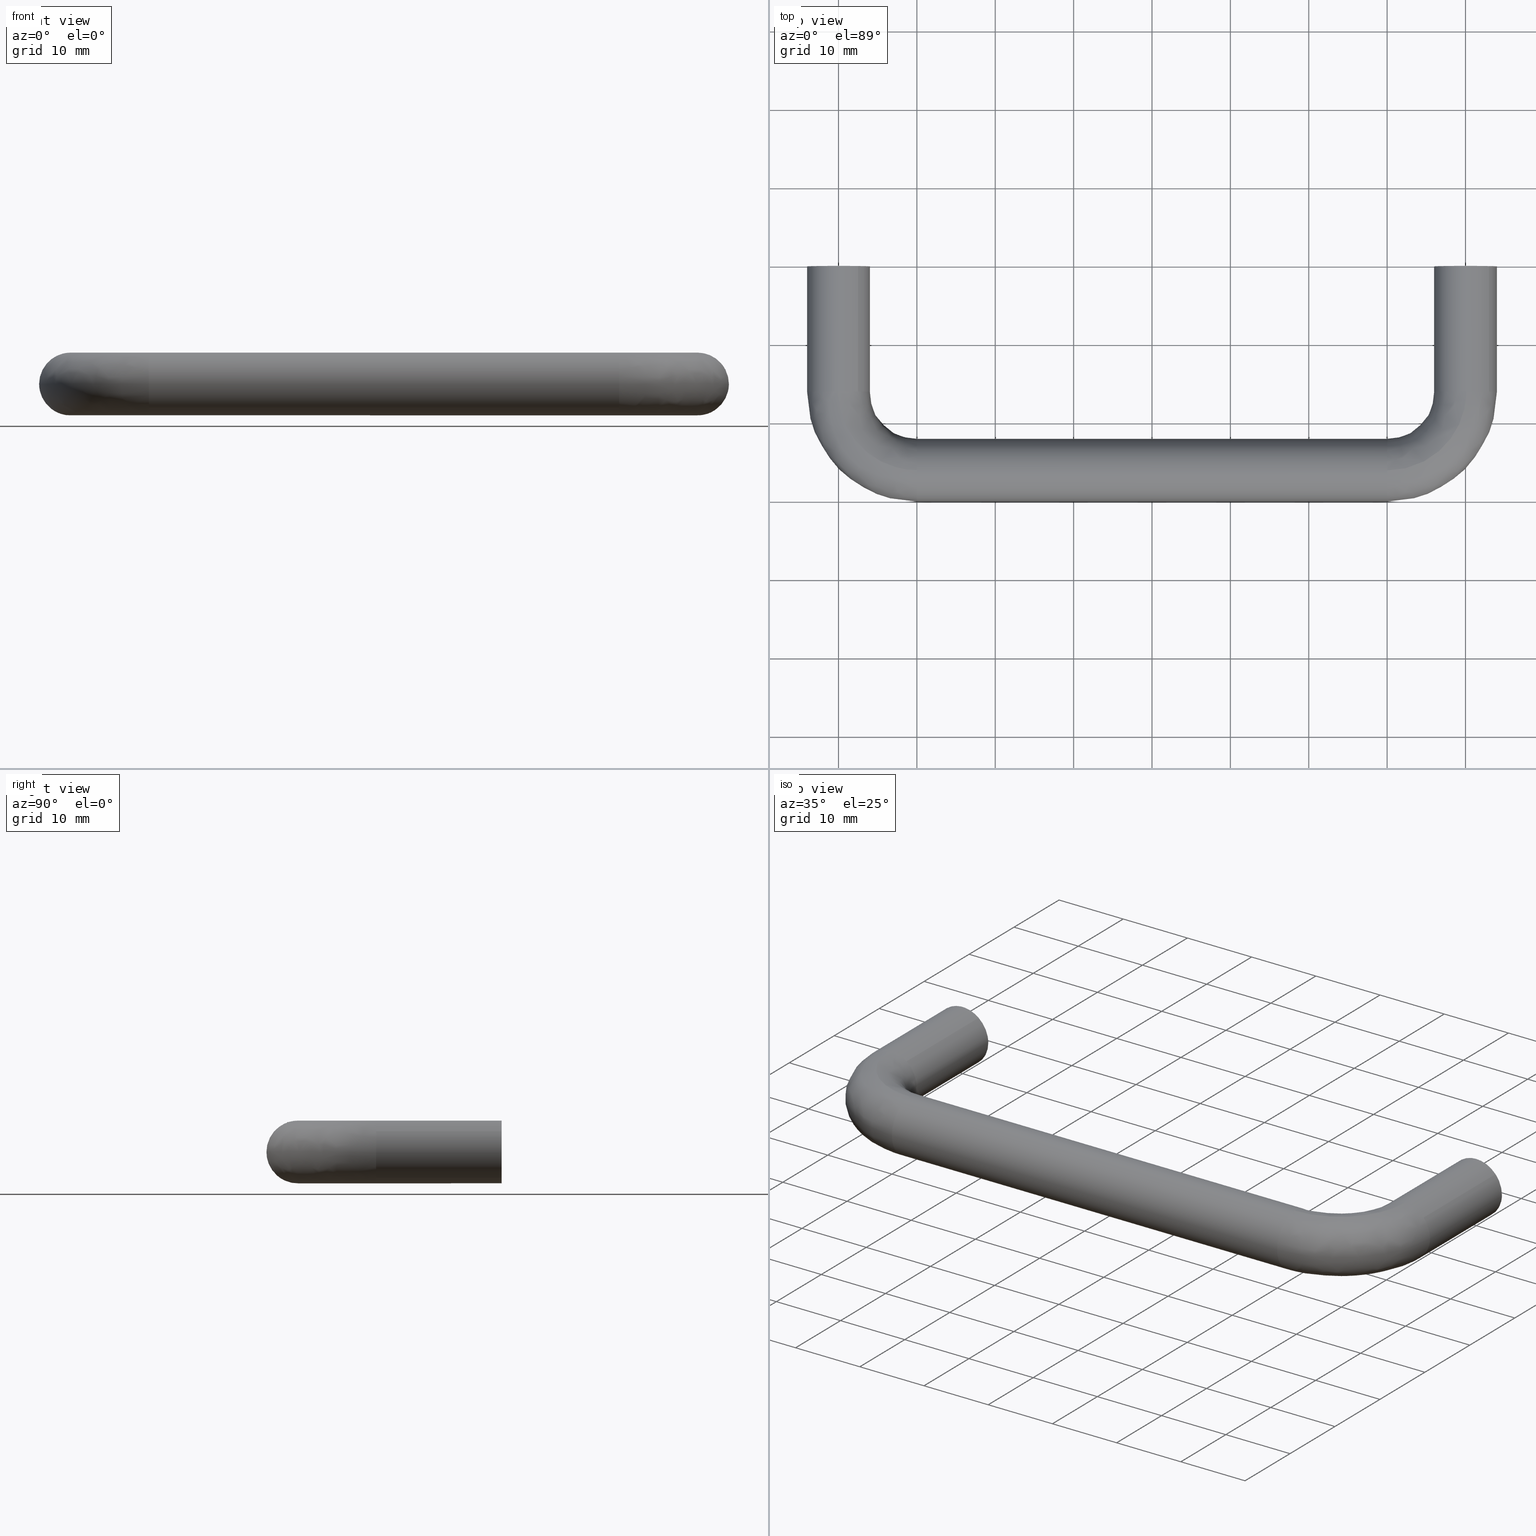
[diagram: canonical four-view strip — front | top / right | iso, engineering-drawing reading convention]
A machine part, canonical four-view strip (front | top / right | iso — engineering-drawing reading convention). The complete STEP part file that produces these views, byte-faithful:
ISO-10303-21;
HEADER;
/****************************************************************
 * Generated by software with PDE/Lib inside                    *
 * PDElib Version 4.4.1-0003, patched  Thursday August 19 11:58 *
 * International Technegroup Inc. (www.iti-oh.com)              *
 ****************************************************************/
FILE_DESCRIPTION((''),'2;1');
FILE_NAME('','2005-10-07T12:41:32',(''),(''),'','CADfix','');
FILE_SCHEMA(('AUTOMOTIVE_DESIGN'));
ENDSEC;
DATA;
#5=APPLICATION_CONTEXT('automotive design');
#6=APPLICATION_PROTOCOL_DEFINITION('Draft International Standard','automotive_design',1998,#5);
#7=PRODUCT_CONTEXT('None',#5,'mechanical');
#8=PRODUCT('pull','','None',(#7));
#9=PRODUCT_RELATED_PRODUCT_CATEGORY('part','description',(#8));
#10=PRODUCT_DEFINITION_FORMATION('None','None',#8);
#11=PRODUCT_DEFINITION_CONTEXT('part definition',#5,'design');
#12=PRODUCT_DEFINITION('None','None',#10,#11);
#18=(NAMED_UNIT(*)PLANE_ANGLE_UNIT()SI_UNIT($,.RADIAN.));
#19=DIMENSIONAL_EXPONENTS(0.0,0.0,0.0,0.0,0.0,0.0,0.0);
#20=PLANE_ANGLE_MEASURE_WITH_UNIT(PLANE_ANGLE_MEASURE(0.017453292500000),#18);
#24=(CONVERSION_BASED_UNIT('DEGREE',#20)NAMED_UNIT(#19)PLANE_ANGLE_UNIT());
#28=(NAMED_UNIT(*)SI_UNIT($,.STERADIAN.)SOLID_ANGLE_UNIT());
#32=(LENGTH_UNIT()NAMED_UNIT(*)SI_UNIT(.MILLI.,.METRE.));
#34=UNCERTAINTY_MEASURE_WITH_UNIT(LENGTH_MEASURE(0.001000000000000),#32,'DISTANCE_ACCURACY_VALUE','');
#36=(GEOMETRIC_REPRESENTATION_CONTEXT(3)GLOBAL_UNCERTAINTY_ASSIGNED_CONTEXT((#34))GLOBAL_UNIT_ASSIGNED_CONTEXT((#24,#28,#32))REPRESENTATION_CONTEXT('None','None'));
#37=AXIS2_PLACEMENT_3D('',#38,#39,#40);
#38=CARTESIAN_POINT('',(0.0,0.0,0.0));
#39=DIRECTION('',(0.0,0.0,1.0));
#40=DIRECTION('',(1.0,0.0,0.0));
#41=ADVANCED_BREP_SHAPE_REPRESENTATION('',(#37,#1345),#36);
#42=PRODUCT_DEFINITION_SHAPE('','',#12);
#43=SHAPE_DEFINITION_REPRESENTATION(#42,#41);
#44=CARTESIAN_POINT('',(-2.492293334332819,-12.300000000000001,0.196147739319614));
#45=CARTESIAN_POINT('',(-2.296145595013206,-12.300000000000002,2.688441073652433));
#46=CARTESIAN_POINT('',(0.196147739319614,-12.300000000000001,2.492293334332819));
#47=CARTESIAN_POINT('',(2.688441073652433,-12.300000000000002,2.296145595013206));
#48=CARTESIAN_POINT('',(2.492293334332819,-12.300000000000001,-0.196147739319614));
#49=CARTESIAN_POINT('',(-2.492293334332819,0.307500000000001,0.196147739319614));
#50=CARTESIAN_POINT('',(-2.296145595013206,0.307500000000001,2.688441073652433));
#51=CARTESIAN_POINT('',(0.196147739319614,0.307500000000001,2.492293334332819));
#52=CARTESIAN_POINT('',(2.688441073652433,0.307500000000001,2.296145595013206));
#53=CARTESIAN_POINT('',(2.492293334332819,0.307500000000001,-0.196147739319614));
#61=(BOUNDED_SURFACE()B_SPLINE_SURFACE(2,1,((#44,#49),(#45,#50),(#46,#51),(#47,#52),(#48,#53)),.UNSPECIFIED.,.F.,.F.,.U.)B_SPLINE_SURFACE_WITH_KNOTS((3,2,3),(2,2),(0.0,4.142135623730949,8.284271247461899),(0.0,12.607500000000011),.UNSPECIFIED.)GEOMETRIC_REPRESENTATION_ITEM()RATIONAL_B_SPLINE_SURFACE(((1.0,1.0),(0.707106781186548,0.707106781186548),(1.0,1.0),(0.707106781186548,0.707106781186548),(1.0,1.0)))REPRESENTATION_ITEM('')SURFACE());
#62=CARTESIAN_POINT('',(0.0,-12.0,2.500000000000000));
#63=VERTEX_POINT('',#62);
#64=CARTESIAN_POINT('',(-2.492293334313221,-12.0,0.196147739568638));
#65=VERTEX_POINT('',#64);
#66=CARTESIAN_POINT('',(0.0,-12.0,2.500000000000000));
#67=CARTESIAN_POINT('',(-2.310976228682274,-12.000000000000002,2.500000000000000));
#68=CARTESIAN_POINT('',(-2.492293334313221,-11.999999999999998,0.196147739568638));
#76=(BOUNDED_CURVE()B_SPLINE_CURVE(2,(#66,#67,#68),.UNSPECIFIED.,.F.,.U.)B_SPLINE_CURVE_WITH_KNOTS((3,3),(0.0,0.236331300598510),.UNSPECIFIED.)CURVE()GEOMETRIC_REPRESENTATION_ITEM()RATIONAL_B_SPLINE_CURVE((1.0,0.723120658645331,0.969723356100324))REPRESENTATION_ITEM(''));
#77=EDGE_CURVE('',#63,#65,#76,.T.);
#78=ORIENTED_EDGE('',*,*,#77,.T.);
#79=CARTESIAN_POINT('',(-2.492293334313221,3.330669E-016,0.196147739568638));
#80=VERTEX_POINT('',#79);
#81=CARTESIAN_POINT('',(-2.492293334313221,-12.0,0.196147739568638));
#82=CARTESIAN_POINT('',(-2.492293334313221,3.330669E-016,0.196147739568638));
#83=QUASI_UNIFORM_CURVE('',1,(#81,#82),.UNSPECIFIED.,.F.,.U.);
#84=EDGE_CURVE('',#65,#80,#83,.T.);
#85=ORIENTED_EDGE('',*,*,#84,.T.);
#86=CARTESIAN_POINT('',(0.0,0.0,2.500000000000000));
#87=VERTEX_POINT('',#86);
#88=CARTESIAN_POINT('',(0.0,0.0,2.500000000000000));
#89=CARTESIAN_POINT('',(-2.310976228682274,0.0,2.500000000000000));
#90=CARTESIAN_POINT('',(-2.492293334313221,3.330669E-016,0.196147739568638));
#98=(BOUNDED_CURVE()B_SPLINE_CURVE(2,(#88,#89,#90),.UNSPECIFIED.,.F.,.U.)B_SPLINE_CURVE_WITH_KNOTS((3,3),(0.0,0.236331300598510),.UNSPECIFIED.)CURVE()GEOMETRIC_REPRESENTATION_ITEM()RATIONAL_B_SPLINE_CURVE((1.0,0.723120658645331,0.969723356100324))REPRESENTATION_ITEM(''));
#99=EDGE_CURVE('',#87,#80,#98,.T.);
#100=ORIENTED_EDGE('',*,*,#99,.F.);
#101=CARTESIAN_POINT('',(2.492293334313221,3.330669E-016,-0.196147739568638));
#102=VERTEX_POINT('',#101);
#103=CARTESIAN_POINT('',(2.492293334313221,3.330669E-016,-0.196147739568638));
#104=CARTESIAN_POINT('',(2.500000000000000,0.0,-0.098225267769354));
#105=CARTESIAN_POINT('',(2.500000000000000,0.0,0.0));
#106=CARTESIAN_POINT('',(2.500000000000000,0.0,2.500000000000000));
#107=CARTESIAN_POINT('',(0.0,0.0,2.500000000000000));
#115=(BOUNDED_CURVE()B_SPLINE_CURVE(2,(#103,#104,#105,#106,#107),.UNSPECIFIED.,.F.,.U.)B_SPLINE_CURVE_WITH_KNOTS((3,2,3),(0.736331300598510,0.750000000000000,1.0),.UNSPECIFIED.)CURVE()GEOMETRIC_REPRESENTATION_ITEM()RATIONAL_B_SPLINE_CURVE((0.969723356100324,0.983986122541217,1.0,0.707106781186548,1.0))REPRESENTATION_ITEM(''));
#116=EDGE_CURVE('',#102,#87,#115,.T.);
#117=ORIENTED_EDGE('',*,*,#116,.F.);
#118=CARTESIAN_POINT('',(2.492293334313221,-12.0,-0.196147739568638));
#119=VERTEX_POINT('',#118);
#120=CARTESIAN_POINT('',(2.492293334313221,-12.0,-0.196147739568638));
#121=CARTESIAN_POINT('',(2.492293334313221,3.330669E-016,-0.196147739568638));
#122=QUASI_UNIFORM_CURVE('',1,(#120,#121),.UNSPECIFIED.,.F.,.U.);
#123=EDGE_CURVE('',#119,#102,#122,.T.);
#124=ORIENTED_EDGE('',*,*,#123,.F.);
#125=CARTESIAN_POINT('',(2.492293334313221,-11.999999999999998,-0.196147739568638));
#126=CARTESIAN_POINT('',(2.500000000000000,-12.000000000000002,-0.098225267769354));
#127=CARTESIAN_POINT('',(2.500000000000000,-12.0,0.0));
#128=CARTESIAN_POINT('',(2.500000000000000,-12.0,2.500000000000000));
#129=CARTESIAN_POINT('',(0.0,-12.0,2.500000000000000));
#137=(BOUNDED_CURVE()B_SPLINE_CURVE(2,(#125,#126,#127,#128,#129),.UNSPECIFIED.,.F.,.U.)B_SPLINE_CURVE_WITH_KNOTS((3,2,3),(0.736331300598510,0.750000000000000,1.0),.UNSPECIFIED.)CURVE()GEOMETRIC_REPRESENTATION_ITEM()RATIONAL_B_SPLINE_CURVE((0.969723356100324,0.983986122541217,1.0,0.707106781186548,1.0))REPRESENTATION_ITEM(''));
#138=EDGE_CURVE('',#119,#63,#137,.T.);
#139=ORIENTED_EDGE('',*,*,#138,.T.);
#140=EDGE_LOOP('',(#78,#85,#100,#117,#124,#139));
#141=FACE_OUTER_BOUND('',#140,.T.);
#142=ADVANCED_FACE('',(#141),#61,.F.);
#143=CARTESIAN_POINT('',(2.492293334332819,-12.300000000000001,-0.196147739319614));
#144=CARTESIAN_POINT('',(2.296145595013206,-12.300000000000002,-2.688441073652433));
#145=CARTESIAN_POINT('',(-0.196147739319614,-12.300000000000001,-2.492293334332819));
#146=CARTESIAN_POINT('',(-2.688441073652433,-12.300000000000002,-2.296145595013206));
#147=CARTESIAN_POINT('',(-2.492293334332819,-12.300000000000001,0.196147739319614));
#148=CARTESIAN_POINT('',(2.492293334332819,0.307500000000001,-0.196147739319614));
#149=CARTESIAN_POINT('',(2.296145595013206,0.307500000000001,-2.688441073652433));
#150=CARTESIAN_POINT('',(-0.196147739319614,0.307500000000001,-2.492293334332819));
#151=CARTESIAN_POINT('',(-2.688441073652433,0.307500000000001,-2.296145595013206));
#152=CARTESIAN_POINT('',(-2.492293334332819,0.307500000000001,0.196147739319614));
#160=(BOUNDED_SURFACE()B_SPLINE_SURFACE(2,1,((#143,#148),(#144,#149),(#145,#150),(#146,#151),(#147,#152)),.UNSPECIFIED.,.F.,.F.,.U.)B_SPLINE_SURFACE_WITH_KNOTS((3,2,3),(2,2),(0.0,4.142135623730949,8.284271247461899),(0.0,12.607500000000011),.UNSPECIFIED.)GEOMETRIC_REPRESENTATION_ITEM()RATIONAL_B_SPLINE_SURFACE(((1.0,1.0),(0.707106781186548,0.707106781186548),(1.0,1.0),(0.707106781186548,0.707106781186548),(1.0,1.0)))REPRESENTATION_ITEM('')SURFACE());
#161=CARTESIAN_POINT('',(0.0,-12.0,-2.500000000000000));
#162=VERTEX_POINT('',#161);
#163=CARTESIAN_POINT('',(-2.492293334313221,-12.0,0.196147739568638));
#164=CARTESIAN_POINT('',(-2.500000000000000,-12.000000000000004,0.098225267769355));
#165=CARTESIAN_POINT('',(-2.500000000000000,-12.0,0.0));
#166=CARTESIAN_POINT('',(-2.500000000000000,-12.0,-2.500000000000000));
#167=CARTESIAN_POINT('',(0.0,-12.0,-2.500000000000000));
#175=(BOUNDED_CURVE()B_SPLINE_CURVE(2,(#163,#164,#165,#166,#167),.UNSPECIFIED.,.F.,.U.)B_SPLINE_CURVE_WITH_KNOTS((3,2,3),(0.236331300598510,0.250000000000000,0.500000000000000),.UNSPECIFIED.)CURVE()GEOMETRIC_REPRESENTATION_ITEM()RATIONAL_B_SPLINE_CURVE((0.969723356100324,0.983986122541216,1.0,0.707106781186548,1.0))REPRESENTATION_ITEM(''));
#176=EDGE_CURVE('',#65,#162,#175,.T.);
#177=ORIENTED_EDGE('',*,*,#176,.T.);
#178=CARTESIAN_POINT('',(0.0,-12.0,-2.500000000000000));
#179=CARTESIAN_POINT('',(2.310976228682289,-12.0,-2.500000000000001));
#180=CARTESIAN_POINT('',(2.492293334313221,-12.0,-0.196147739568638));
#188=(BOUNDED_CURVE()B_SPLINE_CURVE(2,(#178,#179,#180),.UNSPECIFIED.,.F.,.U.)B_SPLINE_CURVE_WITH_KNOTS((3,3),(0.500000000000000,0.736331300598511),.UNSPECIFIED.)CURVE()GEOMETRIC_REPRESENTATION_ITEM()RATIONAL_B_SPLINE_CURVE((1.0,0.723120658645330,0.969723356100327))REPRESENTATION_ITEM(''));
#189=EDGE_CURVE('',#162,#119,#188,.T.);
#190=ORIENTED_EDGE('',*,*,#189,.T.);
#191=ORIENTED_EDGE('',*,*,#123,.T.);
#192=CARTESIAN_POINT('',(0.0,0.0,-2.500000000000000));
#193=VERTEX_POINT('',#192);
#194=CARTESIAN_POINT('',(0.0,0.0,-2.500000000000000));
#195=CARTESIAN_POINT('',(2.310976228682289,0.0,-2.500000000000001));
#196=CARTESIAN_POINT('',(2.492293334313221,3.330669E-016,-0.196147739568638));
#204=(BOUNDED_CURVE()B_SPLINE_CURVE(2,(#194,#195,#196),.UNSPECIFIED.,.F.,.U.)B_SPLINE_CURVE_WITH_KNOTS((3,3),(0.500000000000000,0.736331300598511),.UNSPECIFIED.)CURVE()GEOMETRIC_REPRESENTATION_ITEM()RATIONAL_B_SPLINE_CURVE((1.0,0.723120658645330,0.969723356100327))REPRESENTATION_ITEM(''));
#205=EDGE_CURVE('',#193,#102,#204,.T.);
#206=ORIENTED_EDGE('',*,*,#205,.F.);
#207=CARTESIAN_POINT('',(-2.492293334313221,3.330669E-016,0.196147739568638));
#208=CARTESIAN_POINT('',(-2.500000000000000,0.0,0.098225267769355));
#209=CARTESIAN_POINT('',(-2.500000000000000,0.0,0.0));
#210=CARTESIAN_POINT('',(-2.500000000000000,0.0,-2.500000000000000));
#211=CARTESIAN_POINT('',(0.0,0.0,-2.500000000000000));
#219=(BOUNDED_CURVE()B_SPLINE_CURVE(2,(#207,#208,#209,#210,#211),.UNSPECIFIED.,.F.,.U.)B_SPLINE_CURVE_WITH_KNOTS((3,2,3),(0.236331300598510,0.250000000000000,0.500000000000000),.UNSPECIFIED.)CURVE()GEOMETRIC_REPRESENTATION_ITEM()RATIONAL_B_SPLINE_CURVE((0.969723356100324,0.983986122541216,1.0,0.707106781186548,1.0))REPRESENTATION_ITEM(''));
#220=EDGE_CURVE('',#80,#193,#219,.T.);
#221=ORIENTED_EDGE('',*,*,#220,.F.);
#222=ORIENTED_EDGE('',*,*,#84,.F.);
#223=EDGE_LOOP('',(#177,#190,#191,#206,#221,#222));
#224=FACE_OUTER_BOUND('',#223,.T.);
#225=ADVANCED_FACE('',(#224),#160,.F.);
#226=CARTESIAN_POINT('',(77.507706665667186,-12.300000000000001,0.196147739319614));
#227=CARTESIAN_POINT('',(77.703854404986799,-12.300000000000002,2.688441073652433));
#228=CARTESIAN_POINT('',(80.196147739319613,-12.300000000000001,2.492293334332819));
#229=CARTESIAN_POINT('',(82.688441073652427,-12.300000000000002,2.296145595013206));
#230=CARTESIAN_POINT('',(82.492293334332814,-12.300000000000001,-0.196147739319614));
#231=CARTESIAN_POINT('',(77.507706665667186,0.307500000000001,0.196147739319614));
#232=CARTESIAN_POINT('',(77.703854404986799,0.307500000000001,2.688441073652433));
#233=CARTESIAN_POINT('',(80.196147739319613,0.307500000000001,2.492293334332819));
#234=CARTESIAN_POINT('',(82.688441073652427,0.307500000000001,2.296145595013206));
#235=CARTESIAN_POINT('',(82.492293334332814,0.307500000000001,-0.196147739319614));
#243=(BOUNDED_SURFACE()B_SPLINE_SURFACE(2,1,((#226,#231),(#227,#232),(#228,#233),(#229,#234),(#230,#235)),.UNSPECIFIED.,.F.,.F.,.U.)B_SPLINE_SURFACE_WITH_KNOTS((3,2,3),(2,2),(0.0,4.142135623730946,8.284271247461891),(0.0,12.607500000000011),.UNSPECIFIED.)GEOMETRIC_REPRESENTATION_ITEM()RATIONAL_B_SPLINE_SURFACE(((1.0,1.0),(0.707106781186548,0.707106781186548),(1.0,1.0),(0.707106781186548,0.707106781186548),(1.0,1.0)))REPRESENTATION_ITEM('')SURFACE());
#244=CARTESIAN_POINT('',(80.0,-12.0,2.500000000000000));
#245=VERTEX_POINT('',#244);
#246=CARTESIAN_POINT('',(77.507706665686783,-12.0,0.196147739568638));
#247=VERTEX_POINT('',#246);
#248=CARTESIAN_POINT('',(80.0,-12.0,2.500000000000000));
#249=CARTESIAN_POINT('',(77.689023771317721,-12.000000000000002,2.500000000000000));
#250=CARTESIAN_POINT('',(77.507706665686783,-11.999999999999998,0.196147739568638));
#258=(BOUNDED_CURVE()B_SPLINE_CURVE(2,(#248,#249,#250),.UNSPECIFIED.,.F.,.U.)B_SPLINE_CURVE_WITH_KNOTS((3,3),(0.0,0.236331300598510),.UNSPECIFIED.)CURVE()GEOMETRIC_REPRESENTATION_ITEM()RATIONAL_B_SPLINE_CURVE((1.0,0.723120658645331,0.969723356100324))REPRESENTATION_ITEM(''));
#259=EDGE_CURVE('',#245,#247,#258,.T.);
#260=ORIENTED_EDGE('',*,*,#259,.T.);
#261=CARTESIAN_POINT('',(77.507706665686783,3.330669E-016,0.196147739568638));
#262=VERTEX_POINT('',#261);
#263=CARTESIAN_POINT('',(77.507706665686783,-12.0,0.196147739568638));
#264=CARTESIAN_POINT('',(77.507706665686783,3.330669E-016,0.196147739568638));
#265=QUASI_UNIFORM_CURVE('',1,(#263,#264),.UNSPECIFIED.,.F.,.U.);
#266=EDGE_CURVE('',#247,#262,#265,.T.);
#267=ORIENTED_EDGE('',*,*,#266,.T.);
#268=CARTESIAN_POINT('',(80.0,0.0,2.500000000000000));
#269=VERTEX_POINT('',#268);
#270=CARTESIAN_POINT('',(80.0,0.0,2.500000000000000));
#271=CARTESIAN_POINT('',(77.689023771317721,0.0,2.500000000000000));
#272=CARTESIAN_POINT('',(77.507706665686783,3.330669E-016,0.196147739568638));
#280=(BOUNDED_CURVE()B_SPLINE_CURVE(2,(#270,#271,#272),.UNSPECIFIED.,.F.,.U.)B_SPLINE_CURVE_WITH_KNOTS((3,3),(0.0,0.236331300598510),.UNSPECIFIED.)CURVE()GEOMETRIC_REPRESENTATION_ITEM()RATIONAL_B_SPLINE_CURVE((1.0,0.723120658645331,0.969723356100324))REPRESENTATION_ITEM(''));
#281=EDGE_CURVE('',#269,#262,#280,.T.);
#282=ORIENTED_EDGE('',*,*,#281,.F.);
#283=CARTESIAN_POINT('',(82.492293334313217,3.330669E-016,-0.196147739568638));
#284=VERTEX_POINT('',#283);
#285=CARTESIAN_POINT('',(82.492293334313217,3.330669E-016,-0.196147739568638));
#286=CARTESIAN_POINT('',(82.499999999999986,0.0,-0.098225267769355));
#287=CARTESIAN_POINT('',(82.500000000000000,0.0,0.0));
#288=CARTESIAN_POINT('',(82.500000000000000,0.0,2.500000000000000));
#289=CARTESIAN_POINT('',(80.0,0.0,2.500000000000000));
#297=(BOUNDED_CURVE()B_SPLINE_CURVE(2,(#285,#286,#287,#288,#289),.UNSPECIFIED.,.F.,.U.)B_SPLINE_CURVE_WITH_KNOTS((3,2,3),(0.736331300598510,0.750000000000000,1.0),.UNSPECIFIED.)CURVE()GEOMETRIC_REPRESENTATION_ITEM()RATIONAL_B_SPLINE_CURVE((0.969723356100324,0.983986122541216,1.0,0.707106781186548,1.0))REPRESENTATION_ITEM(''));
#298=EDGE_CURVE('',#284,#269,#297,.T.);
#299=ORIENTED_EDGE('',*,*,#298,.F.);
#300=CARTESIAN_POINT('',(82.492293334313217,-12.0,-0.196147739568638));
#301=VERTEX_POINT('',#300);
#302=CARTESIAN_POINT('',(82.492293334313217,-12.0,-0.196147739568638));
#303=CARTESIAN_POINT('',(82.492293334313217,3.330669E-016,-0.196147739568638));
#304=QUASI_UNIFORM_CURVE('',1,(#302,#303),.UNSPECIFIED.,.F.,.U.);
#305=EDGE_CURVE('',#301,#284,#304,.T.);
#306=ORIENTED_EDGE('',*,*,#305,.F.);
#307=CARTESIAN_POINT('',(82.492293334313217,-12.000000000000002,-0.196147739568638));
#308=CARTESIAN_POINT('',(82.499999999999986,-12.000000000000004,-0.098225267769355));
#309=CARTESIAN_POINT('',(82.500000000000000,-12.0,0.0));
#310=CARTESIAN_POINT('',(82.500000000000000,-12.0,2.500000000000000));
#311=CARTESIAN_POINT('',(80.0,-12.0,2.500000000000000));
#319=(BOUNDED_CURVE()B_SPLINE_CURVE(2,(#307,#308,#309,#310,#311),.UNSPECIFIED.,.F.,.U.)B_SPLINE_CURVE_WITH_KNOTS((3,2,3),(0.736331300598510,0.750000000000000,1.0),.UNSPECIFIED.)CURVE()GEOMETRIC_REPRESENTATION_ITEM()RATIONAL_B_SPLINE_CURVE((0.969723356100324,0.983986122541216,1.0,0.707106781186548,1.0))REPRESENTATION_ITEM(''));
#320=EDGE_CURVE('',#301,#245,#319,.T.);
#321=ORIENTED_EDGE('',*,*,#320,.T.);
#322=EDGE_LOOP('',(#260,#267,#282,#299,#306,#321));
#323=FACE_OUTER_BOUND('',#322,.T.);
#324=ADVANCED_FACE('',(#323),#243,.F.);
#325=CARTESIAN_POINT('',(82.492293334332814,-12.300000000000001,-0.196147739319614));
#326=CARTESIAN_POINT('',(82.296145595013201,-12.300000000000002,-2.688441073652433));
#327=CARTESIAN_POINT('',(79.803852260680387,-12.300000000000001,-2.492293334332819));
#328=CARTESIAN_POINT('',(77.311558926347573,-12.300000000000002,-2.296145595013206));
#329=CARTESIAN_POINT('',(77.507706665667186,-12.300000000000001,0.196147739319614));
#330=CARTESIAN_POINT('',(82.492293334332814,0.307500000000001,-0.196147739319614));
#331=CARTESIAN_POINT('',(82.296145595013201,0.307500000000001,-2.688441073652433));
#332=CARTESIAN_POINT('',(79.803852260680387,0.307500000000001,-2.492293334332819));
#333=CARTESIAN_POINT('',(77.311558926347573,0.307500000000001,-2.296145595013206));
#334=CARTESIAN_POINT('',(77.507706665667186,0.307500000000001,0.196147739319614));
#342=(BOUNDED_SURFACE()B_SPLINE_SURFACE(2,1,((#325,#330),(#326,#331),(#327,#332),(#328,#333),(#329,#334)),.UNSPECIFIED.,.F.,.F.,.U.)B_SPLINE_SURFACE_WITH_KNOTS((3,2,3),(2,2),(0.0,4.142135623730946,8.284271247461891),(0.0,12.607500000000011),.UNSPECIFIED.)GEOMETRIC_REPRESENTATION_ITEM()RATIONAL_B_SPLINE_SURFACE(((1.0,1.0),(0.707106781186548,0.707106781186548),(1.0,1.0),(0.707106781186548,0.707106781186548),(1.0,1.0)))REPRESENTATION_ITEM('')SURFACE());
#343=CARTESIAN_POINT('',(80.0,-12.0,-2.500000000000000));
#344=VERTEX_POINT('',#343);
#345=CARTESIAN_POINT('',(77.507706665686783,-12.0,0.196147739568638));
#346=CARTESIAN_POINT('',(77.500000000000000,-12.000000000000004,0.098225267769355));
#347=CARTESIAN_POINT('',(77.500000000000000,-12.0,0.0));
#348=CARTESIAN_POINT('',(77.500000000000014,-12.0,-2.500000000000000));
#349=CARTESIAN_POINT('',(80.0,-12.0,-2.500000000000000));
#357=(BOUNDED_CURVE()B_SPLINE_CURVE(2,(#345,#346,#347,#348,#349),.UNSPECIFIED.,.F.,.U.)B_SPLINE_CURVE_WITH_KNOTS((3,2,3),(0.236331300598510,0.250000000000000,0.500000000000000),.UNSPECIFIED.)CURVE()GEOMETRIC_REPRESENTATION_ITEM()RATIONAL_B_SPLINE_CURVE((0.969723356100324,0.983986122541216,1.0,0.707106781186548,1.0))REPRESENTATION_ITEM(''));
#358=EDGE_CURVE('',#247,#344,#357,.T.);
#359=ORIENTED_EDGE('',*,*,#358,.T.);
#360=CARTESIAN_POINT('',(80.0,-12.0,-2.500000000000000));
#361=CARTESIAN_POINT('',(82.310976228682250,-12.0,-2.500000000000000));
#362=CARTESIAN_POINT('',(82.492293334313217,-12.000000000000007,-0.196147739568638));
#370=(BOUNDED_CURVE()B_SPLINE_CURVE(2,(#360,#361,#362),.UNSPECIFIED.,.F.,.U.)B_SPLINE_CURVE_WITH_KNOTS((3,3),(0.500000000000000,0.736331300598509),.UNSPECIFIED.)CURVE()GEOMETRIC_REPRESENTATION_ITEM()RATIONAL_B_SPLINE_CURVE((1.0,0.723120658645332,0.969723356100322))REPRESENTATION_ITEM(''));
#371=EDGE_CURVE('',#344,#301,#370,.T.);
#372=ORIENTED_EDGE('',*,*,#371,.T.);
#373=ORIENTED_EDGE('',*,*,#305,.T.);
#374=CARTESIAN_POINT('',(80.0,0.0,-2.500000000000000));
#375=VERTEX_POINT('',#374);
#376=CARTESIAN_POINT('',(80.0,0.0,-2.500000000000000));
#377=CARTESIAN_POINT('',(82.310976228682250,0.0,-2.500000000000000));
#378=CARTESIAN_POINT('',(82.492293334313217,3.330669E-016,-0.196147739568638));
#386=(BOUNDED_CURVE()B_SPLINE_CURVE(2,(#376,#377,#378),.UNSPECIFIED.,.F.,.U.)B_SPLINE_CURVE_WITH_KNOTS((3,3),(0.500000000000000,0.736331300598509),.UNSPECIFIED.)CURVE()GEOMETRIC_REPRESENTATION_ITEM()RATIONAL_B_SPLINE_CURVE((1.0,0.723120658645332,0.969723356100322))REPRESENTATION_ITEM(''));
#387=EDGE_CURVE('',#375,#284,#386,.T.);
#388=ORIENTED_EDGE('',*,*,#387,.F.);
#389=CARTESIAN_POINT('',(77.507706665686783,3.330669E-016,0.196147739568638));
#390=CARTESIAN_POINT('',(77.500000000000000,0.0,0.098225267769355));
#391=CARTESIAN_POINT('',(77.500000000000000,0.0,0.0));
#392=CARTESIAN_POINT('',(77.500000000000014,0.0,-2.500000000000000));
#393=CARTESIAN_POINT('',(80.0,0.0,-2.500000000000000));
#401=(BOUNDED_CURVE()B_SPLINE_CURVE(2,(#389,#390,#391,#392,#393),.UNSPECIFIED.,.F.,.U.)B_SPLINE_CURVE_WITH_KNOTS((3,2,3),(0.236331300598510,0.250000000000000,0.500000000000000),.UNSPECIFIED.)CURVE()GEOMETRIC_REPRESENTATION_ITEM()RATIONAL_B_SPLINE_CURVE((0.969723356100324,0.983986122541217,1.0,0.707106781186548,1.0))REPRESENTATION_ITEM(''));
#402=EDGE_CURVE('',#262,#375,#401,.T.);
#403=ORIENTED_EDGE('',*,*,#402,.F.);
#404=ORIENTED_EDGE('',*,*,#266,.F.);
#405=EDGE_LOOP('',(#359,#372,#373,#388,#403,#404));
#406=FACE_OUTER_BOUND('',#405,.T.);
#407=ADVANCED_FACE('',(#406),#342,.F.);
#408=CARTESIAN_POINT('',(82.286842443536074,-16.400000000610678,-3.281821390393139));
#409=CARTESIAN_POINT('',(79.364407731794643,-16.400000000610675,-5.318235607460819));
#410=CARTESIAN_POINT('',(77.004177116843991,-16.400000000610682,-2.650480192862948));
#411=CARTESIAN_POINT('',(74.353696923981047,-16.400000000610671,0.345342690293061));
#412=CARTESIAN_POINT('',(77.349519807137057,-16.400000000610682,2.995822883156009));
#413=CARTESIAN_POINT('',(80.345342690293066,-16.400000000610671,5.646303076018955));
#414=CARTESIAN_POINT('',(82.995822883156009,-16.400000000610682,2.650480192862948));
#415=CARTESIAN_POINT('',(82.286842443536074,0.410000000015277,-3.281821390393139));
#416=CARTESIAN_POINT('',(79.364407731794643,0.410000000015277,-5.318235607460819));
#417=CARTESIAN_POINT('',(77.004177116843991,0.410000000015277,-2.650480192862948));
#418=CARTESIAN_POINT('',(74.353696923981047,0.410000000015277,0.345342690293061));
#419=CARTESIAN_POINT('',(77.349519807137057,0.410000000015277,2.995822883156009));
#420=CARTESIAN_POINT('',(80.345342690293066,0.410000000015277,5.646303076018955));
#421=CARTESIAN_POINT('',(82.995822883156009,0.410000000015277,2.650480192862948));
#429=(BOUNDED_SURFACE()B_SPLINE_SURFACE(2,1,((#408,#415),(#409,#416),(#410,#417),(#411,#418),(#412,#419),(#413,#420),(#414,#421)),.UNSPECIFIED.,.F.,.F.,.U.)B_SPLINE_SURFACE_WITH_KNOTS((3,2,2,3),(2,2),(0.0,6.097223638131967,12.724640636101499,19.352057634071031),(0.0,16.810000000625958),.UNSPECIFIED.)GEOMETRIC_REPRESENTATION_ITEM()RATIONAL_B_SPLINE_SURFACE(((0.956886118190660,0.956886118190660),(0.730538238691624,0.730538238691624),(1.0,1.0),(0.707106781186548,0.707106781186548),(1.0,1.0),(0.707106781186548,0.707106781186548),(1.0,1.0)))REPRESENTATION_ITEM('')SURFACE());
#430=CARTESIAN_POINT('',(79.899479618137065,-16.000000000145992,-3.998736757130948));
#431=VERTEX_POINT('',#430);
#432=CARTESIAN_POINT('',(82.286842443537779,-16.0,-3.281821390391957));
#433=VERTEX_POINT('',#432);
#434=CARTESIAN_POINT('',(79.899479618137065,-16.000000000145995,-3.998736757130948));
#435=CARTESIAN_POINT('',(79.949731871416873,-16.000000000000004,-4.000000000000000));
#436=CARTESIAN_POINT('',(80.0,-16.0,-4.0));
#437=CARTESIAN_POINT('',(81.256192549054944,-15.999999999999996,-4.0));
#438=CARTESIAN_POINT('',(82.286842443537779,-16.000000000000004,-3.281821390391957));
#446=(BOUNDED_CURVE()B_SPLINE_CURVE(2,(#434,#435,#436,#437,#438),.UNSPECIFIED.,.F.,.U.)B_SPLINE_CURVE_WITH_KNOTS((3,2,3),(0.245579891761969,0.250000000000000,0.348251884123377),.UNSPECIFIED.)CURVE()GEOMETRIC_REPRESENTATION_ITEM()RATIONAL_B_SPLINE_CURVE((0.989826157663860,0.994821521082637,1.0,0.884890757618471,0.860259114788940))REPRESENTATION_ITEM(''));
#447=EDGE_CURVE('',#431,#433,#446,.T.);
#448=ORIENTED_EDGE('',*,*,#447,.F.);
#449=CARTESIAN_POINT('',(76.0,-16.0,0.0));
#450=VERTEX_POINT('',#449);
#451=CARTESIAN_POINT('',(76.0,-16.0,0.0));
#452=CARTESIAN_POINT('',(76.0,-15.999999999999998,-3.900711504547809));
#453=CARTESIAN_POINT('',(79.899479618137065,-16.000000000145992,-3.998736757130948));
#461=(BOUNDED_CURVE()B_SPLINE_CURVE(2,(#451,#452,#453),.UNSPECIFIED.,.F.,.U.)B_SPLINE_CURVE_WITH_KNOTS((3,3),(0.0,0.245579891761969),.UNSPECIFIED.)CURVE()GEOMETRIC_REPRESENTATION_ITEM()RATIONAL_B_SPLINE_CURVE((1.0,0.712285260103910,0.989826157663860))REPRESENTATION_ITEM(''));
#462=EDGE_CURVE('',#450,#431,#461,.T.);
#463=ORIENTED_EDGE('',*,*,#462,.F.);
#464=CARTESIAN_POINT('',(80.100520384521587,-16.000000000595779,3.998736757064114));
#465=VERTEX_POINT('',#464);
#466=CARTESIAN_POINT('',(80.100520384521587,-16.000000000595783,3.998736757064113));
#467=CARTESIAN_POINT('',(80.050268131243058,-16.000000000000004,4.0));
#468=CARTESIAN_POINT('',(80.0,-16.0,4.0));
#469=CARTESIAN_POINT('',(76.0,-15.999999999999998,4.000000000000000));
#470=CARTESIAN_POINT('',(76.0,-16.0,0.0));
#478=(BOUNDED_CURVE()B_SPLINE_CURVE(2,(#466,#467,#468,#469,#470),.UNSPECIFIED.,.F.,.U.)B_SPLINE_CURVE_WITH_KNOTS((3,2,3),(0.745579891529291,0.750000000000000,1.0),.UNSPECIFIED.)CURVE()GEOMETRIC_REPRESENTATION_ITEM()RATIONAL_B_SPLINE_CURVE((0.989826157137938,0.994821520810037,1.0,0.707106781186548,1.0))REPRESENTATION_ITEM(''));
#479=EDGE_CURVE('',#465,#450,#478,.T.);
#480=ORIENTED_EDGE('',*,*,#479,.F.);
#481=CARTESIAN_POINT('',(82.995824228330804,-16.000000000153481,2.650478672026813));
#482=VERTEX_POINT('',#481);
#483=CARTESIAN_POINT('',(82.995824228330804,-16.000000000153474,2.650478672026814));
#484=CARTESIAN_POINT('',(81.841711962091964,-16.000000000329749,3.954966621062498));
#485=CARTESIAN_POINT('',(80.100520384521587,-16.000000000595783,3.998736757064113));
#493=(BOUNDED_CURVE()B_SPLINE_CURVE(2,(#483,#484,#485),.UNSPECIFIED.,.F.,.U.)B_SPLINE_CURVE_WITH_KNOTS((3,3),(0.615779811379745,0.745579891529291),.UNSPECIFIED.)CURVE()GEOMETRIC_REPRESENTATION_ITEM()RATIONAL_B_SPLINE_CURVE((0.854350171477797,0.843133240140239,0.989826157137938))REPRESENTATION_ITEM(''));
#494=EDGE_CURVE('',#482,#465,#493,.T.);
#495=ORIENTED_EDGE('',*,*,#494,.F.);
#496=CARTESIAN_POINT('',(82.995824313989800,9.978129E-015,2.650478575597776));
#497=VERTEX_POINT('',#496);
#498=CARTESIAN_POINT('',(82.995824228330804,-16.000000000153481,2.650478672026813));
#499=CARTESIAN_POINT('',(82.995824313989800,9.978129E-015,2.650478575597776));
#500=QUASI_UNIFORM_CURVE('',1,(#498,#499),.UNSPECIFIED.,.F.,.U.);
#501=EDGE_CURVE('',#482,#497,#500,.T.);
#502=ORIENTED_EDGE('',*,*,#501,.T.);
#503=CARTESIAN_POINT('',(76.0,1.040834E-014,0.0));
#504=VERTEX_POINT('',#503);
#505=CARTESIAN_POINT('',(82.995824313989786,9.978129E-015,2.650478575597777));
#506=CARTESIAN_POINT('',(81.801869913532229,1.040834E-014,4.0));
#507=CARTESIAN_POINT('',(80.0,1.040834E-014,4.0));
#508=CARTESIAN_POINT('',(76.0,1.040834E-014,4.000000000000000));
#509=CARTESIAN_POINT('',(76.0,1.040834E-014,0.0));
#517=(BOUNDED_CURVE()B_SPLINE_CURVE(2,(#505,#506,#507,#508,#509),.UNSPECIFIED.,.F.,.U.)B_SPLINE_CURVE_WITH_KNOTS((3,2,3),(0.615779806528000,0.750000000000000,1.0),.UNSPECIFIED.)CURVE()GEOMETRIC_REPRESENTATION_ITEM()RATIONAL_B_SPLINE_CURVE((0.854350172316343,0.842751262016887,1.0,0.707106781186548,1.0))REPRESENTATION_ITEM(''));
#518=EDGE_CURVE('',#497,#504,#517,.T.);
#519=ORIENTED_EDGE('',*,*,#518,.T.);
#520=CARTESIAN_POINT('',(82.286842456896807,1.080236E-014,-3.281821381083093));
#521=VERTEX_POINT('',#520);
#522=CARTESIAN_POINT('',(76.0,1.040834E-014,0.0));
#523=CARTESIAN_POINT('',(76.0,1.040834E-014,-4.000000000000000));
#524=CARTESIAN_POINT('',(80.0,1.040834E-014,-4.0));
#525=CARTESIAN_POINT('',(81.256192566943326,1.040834E-014,-4.0));
#526=CARTESIAN_POINT('',(82.286842456896807,1.080236E-014,-3.281821381083093));
#534=(BOUNDED_CURVE()B_SPLINE_CURVE(2,(#522,#523,#524,#525,#526),.UNSPECIFIED.,.F.,.U.)B_SPLINE_CURVE_WITH_KNOTS((3,2,3),(0.0,0.250000000000000,0.348251885361446),.UNSPECIFIED.)CURVE()GEOMETRIC_REPRESENTATION_ITEM()RATIONAL_B_SPLINE_CURVE((1.0,0.707106781186548,1.0,0.884890756167983,0.860259114168175))REPRESENTATION_ITEM(''));
#535=EDGE_CURVE('',#504,#521,#534,.T.);
#536=ORIENTED_EDGE('',*,*,#535,.T.);
#537=CARTESIAN_POINT('',(82.286842443537779,-16.0,-3.281821390391957));
#538=CARTESIAN_POINT('',(82.286842456896807,1.080236E-014,-3.281821381083093));
#539=QUASI_UNIFORM_CURVE('',1,(#537,#538),.UNSPECIFIED.,.F.,.U.);
#540=EDGE_CURVE('',#433,#521,#539,.T.);
#541=ORIENTED_EDGE('',*,*,#540,.F.);
#542=EDGE_LOOP('',(#448,#463,#480,#495,#502,#519,#536,#541));
#543=FACE_OUTER_BOUND('',#542,.T.);
#544=ADVANCED_FACE('',(#543),#429,.T.);
#545=CARTESIAN_POINT('',(82.995822883156009,-16.400000000610682,2.650480192862948));
#546=CARTESIAN_POINT('',(85.646303076018953,-16.400000000610671,-0.345342690293061));
#547=CARTESIAN_POINT('',(82.650480192862943,-16.400000000610682,-2.995822883156009));
#548=CARTESIAN_POINT('',(82.476944668525746,-16.400000000610678,-3.149354145835096));
#549=CARTESIAN_POINT('',(82.286842443536074,-16.400000000610678,-3.281821390393139));
#550=CARTESIAN_POINT('',(82.995822883156009,0.410000000015277,2.650480192862948));
#551=CARTESIAN_POINT('',(85.646303076018953,0.410000000015277,-0.345342690293061));
#552=CARTESIAN_POINT('',(82.650480192862943,0.410000000015277,-2.995822883156009));
#553=CARTESIAN_POINT('',(82.476944668525746,0.410000000015277,-3.149354145835096));
#554=CARTESIAN_POINT('',(82.286842443536074,0.410000000015277,-3.281821390393139));
#562=(BOUNDED_SURFACE()B_SPLINE_SURFACE(2,1,((#545,#550),(#546,#551),(#547,#552),(#548,#553),(#549,#554)),.UNSPECIFIED.,.F.,.F.,.U.)B_SPLINE_SURFACE_WITH_KNOTS((3,2,3),(2,2),(0.0,6.627416997969519,7.157610357807082),(0.0,16.810000000625958),.UNSPECIFIED.)GEOMETRIC_REPRESENTATION_ITEM()RATIONAL_B_SPLINE_SURFACE(((1.0,1.0),(0.707106781186548,0.707106781186548),(1.0,1.0),(0.976568542494924,0.976568542494924),(0.956886118190660,0.956886118190660)))REPRESENTATION_ITEM('')SURFACE());
#563=CARTESIAN_POINT('',(84.0,-16.0,0.0));
#564=VERTEX_POINT('',#563);
#565=CARTESIAN_POINT('',(82.286842443537779,-16.000000000000004,-3.281821390391957));
#566=CARTESIAN_POINT('',(83.999999999999986,-15.999999999999996,-2.088057030131726));
#567=CARTESIAN_POINT('',(84.0,-16.0,0.0));
#575=(BOUNDED_CURVE()B_SPLINE_CURVE(2,(#565,#566,#567),.UNSPECIFIED.,.F.,.U.)B_SPLINE_CURVE_WITH_KNOTS((3,3),(0.348251884123377,0.500000000000000),.UNSPECIFIED.)CURVE()GEOMETRIC_REPRESENTATION_ITEM()RATIONAL_B_SPLINE_CURVE((0.860259114788940,0.822216023568076,1.0))REPRESENTATION_ITEM(''));
#576=EDGE_CURVE('',#433,#564,#575,.T.);
#577=ORIENTED_EDGE('',*,*,#576,.F.);
#578=ORIENTED_EDGE('',*,*,#540,.T.);
#579=CARTESIAN_POINT('',(84.0,1.040834E-014,0.0));
#580=VERTEX_POINT('',#579);
#581=CARTESIAN_POINT('',(82.286842456896807,1.080236E-014,-3.281821381083093));
#582=CARTESIAN_POINT('',(84.000000000000014,1.040834E-014,-2.088057009412296));
#583=CARTESIAN_POINT('',(84.0,1.040834E-014,0.0));
#591=(BOUNDED_CURVE()B_SPLINE_CURVE(2,(#581,#582,#583),.UNSPECIFIED.,.F.,.U.)B_SPLINE_CURVE_WITH_KNOTS((3,3),(0.348251885361446,0.500000000000000),.UNSPECIFIED.)CURVE()GEOMETRIC_REPRESENTATION_ITEM()RATIONAL_B_SPLINE_CURVE((0.860259114168175,0.822216025018564,1.0))REPRESENTATION_ITEM(''));
#592=EDGE_CURVE('',#521,#580,#591,.T.);
#593=ORIENTED_EDGE('',*,*,#592,.T.);
#594=CARTESIAN_POINT('',(84.0,1.040834E-014,0.0));
#595=CARTESIAN_POINT('',(84.000000000000014,1.040834E-014,1.515463200125099));
#596=CARTESIAN_POINT('',(82.995824313989786,9.978129E-015,2.650478575597777));
#604=(BOUNDED_CURVE()B_SPLINE_CURVE(2,(#594,#595,#596),.UNSPECIFIED.,.F.,.U.)B_SPLINE_CURVE_WITH_KNOTS((3,3),(0.500000000000000,0.615779806528000),.UNSPECIFIED.)CURVE()GEOMETRIC_REPRESENTATION_ITEM()RATIONAL_B_SPLINE_CURVE((1.0,0.864355519169661,0.854350172316343))REPRESENTATION_ITEM(''));
#605=EDGE_CURVE('',#580,#497,#604,.T.);
#606=ORIENTED_EDGE('',*,*,#605,.T.);
#607=ORIENTED_EDGE('',*,*,#501,.F.);
#608=CARTESIAN_POINT('',(84.0,-16.0,0.0));
#609=CARTESIAN_POINT('',(84.0,-16.000000000000004,1.515463273596464));
#610=CARTESIAN_POINT('',(82.995824228330804,-16.000000000153474,2.650478672026814));
#618=(BOUNDED_CURVE()B_SPLINE_CURVE(2,(#608,#609,#610),.UNSPECIFIED.,.F.,.U.)B_SPLINE_CURVE_WITH_KNOTS((3,3),(0.500000000000000,0.615779811379745),.UNSPECIFIED.)CURVE()GEOMETRIC_REPRESENTATION_ITEM()RATIONAL_B_SPLINE_CURVE((1.0,0.864355513485489,0.854350171477797))REPRESENTATION_ITEM(''));
#619=EDGE_CURVE('',#564,#482,#618,.T.);
#620=ORIENTED_EDGE('',*,*,#619,.F.);
#621=EDGE_LOOP('',(#577,#578,#593,#606,#607,#620));
#622=FACE_OUTER_BOUND('',#621,.T.);
#623=ADVANCED_FACE('',(#622),#562,.T.);
#624=CARTESIAN_POINT('',(8.499999999361522,-23.512770200789916,-3.132680629416496));
#625=CARTESIAN_POINT('',(8.499999999361522,-23.237270391724497,-2.913944212959058));
#626=CARTESIAN_POINT('',(8.499999999361522,-23.004177116843991,-2.650480192862946));
#627=CARTESIAN_POINT('',(8.499999999361522,-20.353696923981044,0.345342690293064));
#628=CARTESIAN_POINT('',(8.499999999361522,-23.349519807137050,2.995822883156010));
#629=CARTESIAN_POINT('',(8.499999999361522,-26.345342690293069,5.646303076018955));
#630=CARTESIAN_POINT('',(8.499999999361522,-28.995822883156009,2.650480192862946));
#631=CARTESIAN_POINT('',(8.499999999361522,-31.646303076018953,-0.345342690293064));
#632=CARTESIAN_POINT('',(8.499999999361522,-28.650480192862950,-2.995822883156010));
#633=CARTESIAN_POINT('',(71.537500000196090,-23.512770200789905,-3.132680629416496));
#634=CARTESIAN_POINT('',(71.537500000196090,-23.237270391724483,-2.913944212959058));
#635=CARTESIAN_POINT('',(71.537500000196090,-23.004177116843980,-2.650480192862946));
#636=CARTESIAN_POINT('',(71.537500000196104,-20.353696923981044,0.345342690293064));
#637=CARTESIAN_POINT('',(71.537500000196090,-23.349519807137050,2.995822883156010));
#638=CARTESIAN_POINT('',(71.537500000196104,-26.345342690293052,5.646303076018955));
#639=CARTESIAN_POINT('',(71.537500000196090,-28.995822883155999,2.650480192862946));
#640=CARTESIAN_POINT('',(71.537500000196104,-31.646303076018953,-0.345342690293064));
#641=CARTESIAN_POINT('',(71.537500000196090,-28.650480192862940,-2.995822883156010));
#649=(BOUNDED_SURFACE()B_SPLINE_SURFACE(2,1,((#624,#633),(#625,#634),(#626,#635),(#627,#636),(#628,#637),(#629,#638),(#630,#639),(#631,#640),(#632,#641)),.UNSPECIFIED.,.F.,.F.,.U.)B_SPLINE_SURFACE_WITH_KNOTS((3,2,2,2,3),(2,2),(0.0,0.795290039756342,7.422707037725860,14.050124035695379,20.677541033664902),(0.0,63.037500000834576),.UNSPECIFIED.)GEOMETRIC_REPRESENTATION_ITEM()RATIONAL_B_SPLINE_SURFACE(((0.938140952186599,0.938140952186599),(0.964852813742386,0.964852813742386),(1.0,1.0),(0.707106781186548,0.707106781186548),(1.0,1.0),(0.707106781186548,0.707106781186548),(1.0,1.0),(0.707106781186548,0.707106781186548),(1.0,1.0)))REPRESENTATION_ITEM('')SURFACE());
#650=CARTESIAN_POINT('',(70.0,-22.0,0.0));
#651=VERTEX_POINT('',#650);
#652=CARTESIAN_POINT('',(70.000000000068184,-23.512772870504168,-3.132682749045181));
#653=VERTEX_POINT('',#652);
#654=CARTESIAN_POINT('',(70.0,-22.0,0.0));
#655=CARTESIAN_POINT('',(70.0,-22.000000000000007,-1.931600473656280));
#656=CARTESIAN_POINT('',(70.000000000068184,-23.512772870504158,-3.132682749045181));
#664=(BOUNDED_CURVE()B_SPLINE_CURVE(2,(#654,#655,#656),.UNSPECIFIED.,.F.,.U.)B_SPLINE_CURVE_WITH_KNOTS((3,3),(0.0,0.142272992642191),.UNSPECIFIED.)CURVE()GEOMETRIC_REPRESENTATION_ITEM()RATIONAL_B_SPLINE_CURVE((1.0,0.833316820939224,0.856349759543174))REPRESENTATION_ITEM(''));
#665=EDGE_CURVE('',#651,#653,#664,.T.);
#666=ORIENTED_EDGE('',*,*,#665,.T.);
#667=CARTESIAN_POINT('',(9.999999999955744,-23.512770200805161,-3.132680629395788));
#668=VERTEX_POINT('',#667);
#669=CARTESIAN_POINT('',(9.999999999955744,-23.512770200805161,-3.132680629395788));
#670=CARTESIAN_POINT('',(70.000000000068184,-23.512772870504168,-3.132682749045181));
#671=QUASI_UNIFORM_CURVE('',1,(#669,#670),.UNSPECIFIED.,.F.,.U.);
#672=EDGE_CURVE('',#668,#653,#671,.T.);
#673=ORIENTED_EDGE('',*,*,#672,.F.);
#674=CARTESIAN_POINT('',(10.0,-22.0,0.0));
#675=VERTEX_POINT('',#674);
#676=CARTESIAN_POINT('',(10.0,-22.0,0.0));
#677=CARTESIAN_POINT('',(10.0,-21.999999999999996,-1.931598371755627));
#678=CARTESIAN_POINT('',(9.999999999955744,-23.512770200805161,-3.132680629395788));
#686=(BOUNDED_CURVE()B_SPLINE_CURVE(2,(#676,#677,#678),.UNSPECIFIED.,.F.,.U.)B_SPLINE_CURVE_WITH_KNOTS((3,3),(0.0,0.142272863630943),.UNSPECIFIED.)CURVE()GEOMETRIC_REPRESENTATION_ITEM()RATIONAL_B_SPLINE_CURVE((1.0,0.833316972085303,0.856349717771409))REPRESENTATION_ITEM(''));
#687=EDGE_CURVE('',#675,#668,#686,.T.);
#688=ORIENTED_EDGE('',*,*,#687,.F.);
#689=CARTESIAN_POINT('',(9.999999999381382,-26.050264162204599,3.999684176781694));
#690=VERTEX_POINT('',#689);
#691=CARTESIAN_POINT('',(9.999999999381382,-26.050264162204602,3.999684176781694));
#692=CARTESIAN_POINT('',(10.0,-26.025133074639072,4.000000000000000));
#693=CARTESIAN_POINT('',(10.0,-26.0,4.0));
#694=CARTESIAN_POINT('',(10.000000000000002,-22.000000000000007,4.000000000000000));
#695=CARTESIAN_POINT('',(10.0,-22.0,0.0));
#703=(BOUNDED_CURVE()B_SPLINE_CURVE(2,(#691,#692,#693,#694,#695),.UNSPECIFIED.,.F.,.U.)B_SPLINE_CURVE_WITH_KNOTS((3,2,3),(0.747784295686822,0.750000000000000,1.0),.UNSPECIFIED.)CURVE()GEOMETRIC_REPRESENTATION_ITEM()RATIONAL_B_SPLINE_CURVE((0.994854295103350,0.997404140927098,1.0,0.707106781186548,1.0))REPRESENTATION_ITEM(''));
#704=EDGE_CURVE('',#690,#675,#703,.T.);
#705=ORIENTED_EDGE('',*,*,#704,.F.);
#706=CARTESIAN_POINT('',(10.0,-30.0,0.0));
#707=VERTEX_POINT('',#706);
#708=CARTESIAN_POINT('',(10.0,-30.0,0.0));
#709=CARTESIAN_POINT('',(10.0,-30.0,3.950047714352737));
#710=CARTESIAN_POINT('',(9.999999999381382,-26.050264162204602,3.999684176781694));
#718=(BOUNDED_CURVE()B_SPLINE_CURVE(2,(#708,#709,#710),.UNSPECIFIED.,.F.,.U.)B_SPLINE_CURVE_WITH_KNOTS((3,3),(0.500000000000000,0.747784295686821),.UNSPECIFIED.)CURVE()GEOMETRIC_REPRESENTATION_ITEM()RATIONAL_B_SPLINE_CURVE((1.0,0.709702640259450,0.994854295103348))REPRESENTATION_ITEM(''));
#719=EDGE_CURVE('',#707,#690,#718,.T.);
#720=ORIENTED_EDGE('',*,*,#719,.F.);
#721=CARTESIAN_POINT('',(10.0,-28.650478575597770,-2.995824313989811));
#722=VERTEX_POINT('',#721);
#723=CARTESIAN_POINT('',(10.0,-28.650478575597770,-2.995824313989811));
#724=CARTESIAN_POINT('',(10.000000000000002,-29.999999999999996,-1.801869913532229));
#725=CARTESIAN_POINT('',(10.0,-30.0,0.0));
#733=(BOUNDED_CURVE()B_SPLINE_CURVE(2,(#723,#724,#725),.UNSPECIFIED.,.F.,.U.)B_SPLINE_CURVE_WITH_KNOTS((3,3),(0.365779806528000,0.500000000000000),.UNSPECIFIED.)CURVE()GEOMETRIC_REPRESENTATION_ITEM()RATIONAL_B_SPLINE_CURVE((0.854350172316343,0.842751262016886,1.0))REPRESENTATION_ITEM(''));
#734=EDGE_CURVE('',#722,#707,#733,.T.);
#735=ORIENTED_EDGE('',*,*,#734,.F.);
#736=CARTESIAN_POINT('',(70.000000000000014,-28.650478555391039,-2.995824331867176));
#737=VERTEX_POINT('',#736);
#738=CARTESIAN_POINT('',(10.0,-28.650478575597770,-2.995824313989811));
#739=CARTESIAN_POINT('',(70.000000000000014,-28.650478555391039,-2.995824331867176));
#740=QUASI_UNIFORM_CURVE('',1,(#738,#739),.UNSPECIFIED.,.F.,.U.);
#741=EDGE_CURVE('',#722,#737,#740,.T.);
#742=ORIENTED_EDGE('',*,*,#741,.T.);
#743=CARTESIAN_POINT('',(70.0,-30.0,0.0));
#744=VERTEX_POINT('',#743);
#745=CARTESIAN_POINT('',(70.000000000000014,-28.650478555391039,-2.995824331867177));
#746=CARTESIAN_POINT('',(70.0,-30.0,-1.801869929759543));
#747=CARTESIAN_POINT('',(70.0,-30.0,0.0));
#755=(BOUNDED_CURVE()B_SPLINE_CURVE(2,(#745,#746,#747),.UNSPECIFIED.,.F.,.U.)B_SPLINE_CURVE_WITH_KNOTS((3,3),(0.365779805509314,0.500000000000000),.UNSPECIFIED.)CURVE()GEOMETRIC_REPRESENTATION_ITEM()RATIONAL_B_SPLINE_CURVE((0.854350172492407,0.842751260823421,1.0))REPRESENTATION_ITEM(''));
#756=EDGE_CURVE('',#737,#744,#755,.T.);
#757=ORIENTED_EDGE('',*,*,#756,.T.);
#758=CARTESIAN_POINT('',(70.000000000045731,-26.100520382309391,3.998736757119724));
#759=VERTEX_POINT('',#758);
#760=CARTESIAN_POINT('',(70.0,-30.0,0.0));
#761=CARTESIAN_POINT('',(69.999999999999986,-30.0,3.900711503676483));
#762=CARTESIAN_POINT('',(70.000000000045731,-26.100520382309391,3.998736757119725));
#770=(BOUNDED_CURVE()B_SPLINE_CURVE(2,(#760,#761,#762),.UNSPECIFIED.,.F.,.U.)B_SPLINE_CURVE_WITH_KNOTS((3,3),(0.500000000000000,0.745579891722896),.UNSPECIFIED.)CURVE()GEOMETRIC_REPRESENTATION_ITEM()RATIONAL_B_SPLINE_CURVE((1.0,0.712285260149688,0.989826157575542))REPRESENTATION_ITEM(''));
#771=EDGE_CURVE('',#744,#759,#770,.T.);
#772=ORIENTED_EDGE('',*,*,#771,.T.);
#773=CARTESIAN_POINT('',(70.000000000045731,-26.100520382309391,3.998736757119724));
#774=CARTESIAN_POINT('',(70.0,-26.050268129029810,4.000000000000000));
#775=CARTESIAN_POINT('',(70.0,-26.0,4.0));
#776=CARTESIAN_POINT('',(70.0,-22.000000000000007,4.000000000000000));
#777=CARTESIAN_POINT('',(70.0,-22.0,0.0));
#785=(BOUNDED_CURVE()B_SPLINE_CURVE(2,(#773,#774,#775,#776,#777),.UNSPECIFIED.,.F.,.U.)B_SPLINE_CURVE_WITH_KNOTS((3,2,3),(0.745579891722895,0.750000000000000,1.0),.UNSPECIFIED.)CURVE()GEOMETRIC_REPRESENTATION_ITEM()RATIONAL_B_SPLINE_CURVE((0.989826157575540,0.994821521036859,1.0,0.707106781186548,1.0))REPRESENTATION_ITEM(''));
#786=EDGE_CURVE('',#759,#651,#785,.T.);
#787=ORIENTED_EDGE('',*,*,#786,.T.);
#788=EDGE_LOOP('',(#666,#673,#688,#705,#720,#735,#742,#757,#772,#787));
#789=FACE_OUTER_BOUND('',#788,.T.);
#790=ADVANCED_FACE('',(#789),#649,.T.);
#791=CARTESIAN_POINT('',(8.499999999361522,-28.650480192862950,-2.995822883156010));
#792=CARTESIAN_POINT('',(8.499999999361522,-26.138991192375961,-5.217800653541194));
#793=CARTESIAN_POINT('',(8.499999999361522,-23.512770200789916,-3.132680629416496));
#794=CARTESIAN_POINT('',(71.537500000196090,-28.650480192862940,-2.995822883156010));
#795=CARTESIAN_POINT('',(71.537500000196090,-26.138991192375961,-5.217800653541194));
#796=CARTESIAN_POINT('',(71.537500000196090,-23.512770200789905,-3.132680629416496));
#804=(BOUNDED_SURFACE()B_SPLINE_SURFACE(2,1,((#791,#794),(#792,#795),(#793,#796)),.UNSPECIFIED.,.F.,.F.,.U.)B_SPLINE_SURFACE_WITH_KNOTS((3,3),(2,2),(0.0,5.817753329419233),(0.0,63.037500000834576),.UNSPECIFIED.)GEOMETRIC_REPRESENTATION_ITEM()RATIONAL_B_SPLINE_SURFACE(((1.0,1.0),(0.742253967444162,0.742253967444162),(0.938140952186599,0.938140952186599)))REPRESENTATION_ITEM('')SURFACE());
#805=CARTESIAN_POINT('',(70.000000000175731,-25.899479618094979,-3.998736757129889));
#806=VERTEX_POINT('',#805);
#807=CARTESIAN_POINT('',(70.000000000068184,-23.512772870504158,-3.132682749045181));
#808=CARTESIAN_POINT('',(70.000000000115421,-24.561202997038603,-3.965095113433388));
#809=CARTESIAN_POINT('',(70.000000000175731,-25.899479618094983,-3.998736757129889));
#817=(BOUNDED_CURVE()B_SPLINE_CURVE(2,(#807,#808,#809),.UNSPECIFIED.,.F.,.U.)B_SPLINE_CURVE_WITH_KNOTS((3,3),(0.142272992642191,0.245579891758284),.UNSPECIFIED.)CURVE()GEOMETRIC_REPRESENTATION_ITEM()RATIONAL_B_SPLINE_CURVE((0.856349759543174,0.873074377620828,0.989826157655530))REPRESENTATION_ITEM(''));
#818=EDGE_CURVE('',#653,#806,#817,.T.);
#819=ORIENTED_EDGE('',*,*,#818,.T.);
#820=CARTESIAN_POINT('',(70.000000000175731,-25.899479618094979,-3.998736757129890));
#821=CARTESIAN_POINT('',(70.0,-25.949731871374752,-4.0));
#822=CARTESIAN_POINT('',(70.0,-26.0,-4.0));
#823=CARTESIAN_POINT('',(70.000000000000014,-27.515463184698838,-4.000000000000000));
#824=CARTESIAN_POINT('',(70.000000000000014,-28.650478555391043,-2.995824331867176));
#832=(BOUNDED_CURVE()B_SPLINE_CURVE(2,(#820,#821,#822,#823,#824),.UNSPECIFIED.,.F.,.U.)B_SPLINE_CURVE_WITH_KNOTS((3,2,3),(0.245579891758284,0.250000000000000,0.365779805509314),.UNSPECIFIED.)CURVE()GEOMETRIC_REPRESENTATION_ITEM()RATIONAL_B_SPLINE_CURVE((0.989826157655530,0.994821521078320,1.0,0.864355520363126,0.854350172492407))REPRESENTATION_ITEM(''));
#833=EDGE_CURVE('',#806,#737,#832,.T.);
#834=ORIENTED_EDGE('',*,*,#833,.T.);
#835=ORIENTED_EDGE('',*,*,#741,.F.);
#836=CARTESIAN_POINT('',(9.999999999891141,-25.721066993475230,-3.990262695346141));
#837=VERTEX_POINT('',#836);
#838=CARTESIAN_POINT('',(9.999999999891141,-25.721066993475233,-3.990262695346142));
#839=CARTESIAN_POINT('',(10.0,-25.860363536277340,-4.000000000000001));
#840=CARTESIAN_POINT('',(10.0,-26.0,-4.0));
#841=CARTESIAN_POINT('',(10.0,-27.515463200125097,-4.0));
#842=CARTESIAN_POINT('',(10.0,-28.650478575597770,-2.995824313989811));
#850=(BOUNDED_CURVE()B_SPLINE_CURVE(2,(#838,#839,#840,#841,#842),.UNSPECIFIED.,.F.,.U.)B_SPLINE_CURVE_WITH_KNOTS((3,2,3),(0.237833686515912,0.250000000000000,0.365779806528000),.UNSPECIFIED.)CURVE()GEOMETRIC_REPRESENTATION_ITEM()RATIONAL_B_SPLINE_CURVE((0.972879876346409,0.985746277130208,1.0,0.864355519169661,0.854350172316343))REPRESENTATION_ITEM(''));
#851=EDGE_CURVE('',#837,#722,#850,.T.);
#852=ORIENTED_EDGE('',*,*,#851,.F.);
#853=CARTESIAN_POINT('',(9.999999999955744,-23.512770200805161,-3.132680629395788));
#854=CARTESIAN_POINT('',(9.999999999927331,-24.483982278594308,-3.903786243676122));
#855=CARTESIAN_POINT('',(9.999999999891141,-25.721066993475230,-3.990262695346142));
#863=(BOUNDED_CURVE()B_SPLINE_CURVE(2,(#853,#854,#855),.UNSPECIFIED.,.F.,.U.)B_SPLINE_CURVE_WITH_KNOTS((3,3),(0.142272863630943,0.237833686515912),.UNSPECIFIED.)CURVE()GEOMETRIC_REPRESENTATION_ITEM()RATIONAL_B_SPLINE_CURVE((0.856349717771409,0.871820188210339,0.972879876346409))REPRESENTATION_ITEM(''));
#864=EDGE_CURVE('',#668,#837,#863,.T.);
#865=ORIENTED_EDGE('',*,*,#864,.F.);
#866=ORIENTED_EDGE('',*,*,#672,.T.);
#867=EDGE_LOOP('',(#819,#834,#835,#852,#865,#866));
#868=FACE_OUTER_BOUND('',#867,.T.);
#869=ADVANCED_FACE('',(#868),#804,.T.);
#870=CARTESIAN_POINT('',(2.490058546550477,0.400000000017802,3.130432627409655));
#871=CARTESIAN_POINT('',(-0.640374080859178,0.400000000017802,5.620491173960132));
#872=CARTESIAN_POINT('',(-3.130432627409655,0.400000000017802,2.490058546550477));
#873=CARTESIAN_POINT('',(-5.620491173960132,0.400000000017801,-0.640374080859178));
#874=CARTESIAN_POINT('',(-2.490058546550477,0.400000000017802,-3.130432627409655));
#875=CARTESIAN_POINT('',(2.490058546550479,-16.410000000730300,3.130432627409655));
#876=CARTESIAN_POINT('',(-0.640374080859176,-16.410000000730292,5.620491173960132));
#877=CARTESIAN_POINT('',(-3.130432627409653,-16.410000000730300,2.490058546550477));
#878=CARTESIAN_POINT('',(-5.620491173960129,-16.410000000730292,-0.640374080859178));
#879=CARTESIAN_POINT('',(-2.490058546550475,-16.410000000730300,-3.130432627409655));
#887=(BOUNDED_SURFACE()B_SPLINE_SURFACE(2,1,((#870,#875),(#871,#876),(#872,#877),(#873,#878),(#874,#879)),.UNSPECIFIED.,.F.,.F.,.U.)B_SPLINE_SURFACE_WITH_KNOTS((3,2,3),(2,2),(0.0,6.627416997969518,13.254833995939039),(0.0,16.810000000748101),.UNSPECIFIED.)GEOMETRIC_REPRESENTATION_ITEM()RATIONAL_B_SPLINE_SURFACE(((1.0,1.0),(0.707106781186548,0.707106781186548),(1.0,1.0),(0.707106781186548,0.707106781186548),(1.0,1.0)))REPRESENTATION_ITEM('')SURFACE());
#888=CARTESIAN_POINT('',(-0.050264159701147,-16.000000000000160,3.999684176813156));
#889=VERTEX_POINT('',#888);
#890=CARTESIAN_POINT('',(2.490057939572067,-15.999999999999970,3.130433110221893));
#891=VERTEX_POINT('',#890);
#892=CARTESIAN_POINT('',(-0.050264159701147,-16.000000000000163,3.999684176813156));
#893=CARTESIAN_POINT('',(-0.025133072135318,-16.000000000000007,4.0));
#894=CARTESIAN_POINT('',(1.959370E-015,-16.0,4.0));
#895=CARTESIAN_POINT('',(1.396861663518624,-15.999999999999996,4.000000000000000));
#896=CARTESIAN_POINT('',(2.490057939572067,-15.999999999999972,3.130433110221893));
#904=(BOUNDED_CURVE()B_SPLINE_CURVE(2,(#892,#893,#894,#895,#896),.UNSPECIFIED.,.F.,.U.)B_SPLINE_CURVE_WITH_KNOTS((3,2,3),(0.747784295906977,0.750000000000000,0.857863818689484),.UNSPECIFIED.)CURVE()GEOMETRIC_REPRESENTATION_ITEM()RATIONAL_B_SPLINE_CURVE((0.994854295610061,0.997404141185025,1.0,0.873629675802106,0.856305637500315))REPRESENTATION_ITEM(''));
#905=EDGE_CURVE('',#889,#891,#904,.T.);
#906=ORIENTED_EDGE('',*,*,#905,.T.);
#907=CARTESIAN_POINT('',(2.490055038464335,0.0,3.130435417860953));
#908=VERTEX_POINT('',#907);
#909=CARTESIAN_POINT('',(2.490055038464335,0.0,3.130435417860953));
#910=CARTESIAN_POINT('',(2.490057939572067,-15.999999999999970,3.130433110221893));
#911=QUASI_UNIFORM_CURVE('',1,(#909,#910),.UNSPECIFIED.,.F.,.U.);
#912=EDGE_CURVE('',#908,#891,#911,.T.);
#913=ORIENTED_EDGE('',*,*,#912,.F.);
#914=CARTESIAN_POINT('',(-4.0,0.0,0.0));
#915=VERTEX_POINT('',#914);
#916=CARTESIAN_POINT('',(-4.0,0.0,0.0));
#917=CARTESIAN_POINT('',(-4.000000000000000,0.0,4.000000000000000));
#918=CARTESIAN_POINT('',(0.0,0.0,4.0));
#919=CARTESIAN_POINT('',(1.396860019082649,0.0,4.0));
#920=CARTESIAN_POINT('',(2.490055038464334,0.0,3.130435417860954));
#928=(BOUNDED_CURVE()B_SPLINE_CURVE(2,(#916,#917,#918,#919,#920),.UNSPECIFIED.,.F.,.U.)B_SPLINE_CURVE_WITH_KNOTS((3,2,3),(0.500000000000000,0.750000000000000,0.857863707754939),.UNSPECIFIED.)CURVE()GEOMETRIC_REPRESENTATION_ITEM()RATIONAL_B_SPLINE_CURVE((1.0,0.707106781186548,1.0,0.873629805770009,0.856305673134887))REPRESENTATION_ITEM(''));
#929=EDGE_CURVE('',#915,#908,#928,.T.);
#930=ORIENTED_EDGE('',*,*,#929,.F.);
#931=CARTESIAN_POINT('',(-2.490055038464335,-2.775558E-016,-3.130435417860953));
#932=VERTEX_POINT('',#931);
#933=CARTESIAN_POINT('',(-2.490055038464334,-2.775558E-016,-3.130435417860954));
#934=CARTESIAN_POINT('',(-4.0,0.0,-1.929373725991010));
#935=CARTESIAN_POINT('',(-4.0,0.0,0.0));
#943=(BOUNDED_CURVE()B_SPLINE_CURVE(2,(#933,#934,#935),.UNSPECIFIED.,.F.,.U.)B_SPLINE_CURVE_WITH_KNOTS((3,3),(0.357863707754939,0.500000000000000),.UNSPECIFIED.)CURVE()GEOMETRIC_REPRESENTATION_ITEM()RATIONAL_B_SPLINE_CURVE((0.856305673134887,0.833476975416539,1.0))REPRESENTATION_ITEM(''));
#944=EDGE_CURVE('',#932,#915,#943,.T.);
#945=ORIENTED_EDGE('',*,*,#944,.F.);
#946=CARTESIAN_POINT('',(-2.490057939572063,-15.999999999999970,-3.130433110221893));
#947=VERTEX_POINT('',#946);
#948=CARTESIAN_POINT('',(-2.490055038464335,-2.775558E-016,-3.130435417860953));
#949=CARTESIAN_POINT('',(-2.490057939572063,-15.999999999999970,-3.130433110221893));
#950=QUASI_UNIFORM_CURVE('',1,(#948,#949),.UNSPECIFIED.,.F.,.U.);
#951=EDGE_CURVE('',#932,#947,#950,.T.);
#952=ORIENTED_EDGE('',*,*,#951,.T.);
#953=CARTESIAN_POINT('',(-3.999999999999998,-16.0,0.0));
#954=VERTEX_POINT('',#953);
#955=CARTESIAN_POINT('',(-2.490057939572064,-15.999999999999966,-3.130433110221892));
#956=CARTESIAN_POINT('',(-3.999999999999998,-16.000000000000004,-1.929371919297421));
#957=CARTESIAN_POINT('',(-3.999999999999998,-16.0,0.0));
#965=(BOUNDED_CURVE()B_SPLINE_CURVE(2,(#955,#956,#957),.UNSPECIFIED.,.F.,.U.)B_SPLINE_CURVE_WITH_KNOTS((3,3),(0.357863818689483,0.500000000000000),.UNSPECIFIED.)CURVE()GEOMETRIC_REPRESENTATION_ITEM()RATIONAL_B_SPLINE_CURVE((0.856305637500316,0.833477105384441,1.0))REPRESENTATION_ITEM(''));
#966=EDGE_CURVE('',#947,#954,#965,.T.);
#967=ORIENTED_EDGE('',*,*,#966,.T.);
#968=CARTESIAN_POINT('',(-3.999999999999998,-16.0,0.0));
#969=CARTESIAN_POINT('',(-3.999999999999999,-15.999999999999995,3.950047719297902));
#970=CARTESIAN_POINT('',(-0.050264159701147,-16.000000000000156,3.999684176813156));
#978=(BOUNDED_CURVE()B_SPLINE_CURVE(2,(#968,#969,#970),.UNSPECIFIED.,.F.,.U.)B_SPLINE_CURVE_WITH_KNOTS((3,3),(0.500000000000000,0.747784295906976),.UNSPECIFIED.)CURVE()GEOMETRIC_REPRESENTATION_ITEM()RATIONAL_B_SPLINE_CURVE((1.0,0.709702640001523,0.994854295610060))REPRESENTATION_ITEM(''));
#979=EDGE_CURVE('',#954,#889,#978,.T.);
#980=ORIENTED_EDGE('',*,*,#979,.T.);
#981=EDGE_LOOP('',(#906,#913,#930,#945,#952,#967,#980));
#982=FACE_OUTER_BOUND('',#981,.T.);
#983=ADVANCED_FACE('',(#982),#887,.T.);
#984=CARTESIAN_POINT('',(-2.490058546550477,0.400000000017802,-3.130432627409655));
#985=CARTESIAN_POINT('',(0.640374080859178,0.400000000017802,-5.620491173960132));
#986=CARTESIAN_POINT('',(3.130432627409655,0.400000000017803,-2.490058546550477));
#987=CARTESIAN_POINT('',(5.620491173960132,0.400000000017803,0.640374080859178));
#988=CARTESIAN_POINT('',(2.490058546550477,0.400000000017802,3.130432627409655));
#989=CARTESIAN_POINT('',(-2.490058546550475,-16.410000000730300,-3.130432627409655));
#990=CARTESIAN_POINT('',(0.640374080859181,-16.410000000730292,-5.620491173960132));
#991=CARTESIAN_POINT('',(3.130432627409657,-16.410000000730300,-2.490058546550477));
#992=CARTESIAN_POINT('',(5.620491173960136,-16.410000000730292,0.640374080859178));
#993=CARTESIAN_POINT('',(2.490058546550479,-16.410000000730300,3.130432627409655));
#1001=(BOUNDED_SURFACE()B_SPLINE_SURFACE(2,1,((#984,#989),(#985,#990),(#986,#991),(#987,#992),(#988,#993)),.UNSPECIFIED.,.F.,.F.,.U.)B_SPLINE_SURFACE_WITH_KNOTS((3,2,3),(2,2),(0.0,6.627416997969518,13.254833995939039),(0.0,16.810000000748101),.UNSPECIFIED.)GEOMETRIC_REPRESENTATION_ITEM()RATIONAL_B_SPLINE_SURFACE(((1.0,1.0),(0.707106781186548,0.707106781186548),(1.0,1.0),(0.707106781186548,0.707106781186548),(1.0,1.0)))REPRESENTATION_ITEM('')SURFACE());
#1002=CARTESIAN_POINT('',(4.000000000000002,-16.0,0.0));
#1003=VERTEX_POINT('',#1002);
#1004=CARTESIAN_POINT('',(2.490057939572067,-15.999999999999966,3.130433110221892));
#1005=CARTESIAN_POINT('',(4.000000000000002,-16.000000000000004,1.929371919297421));
#1006=CARTESIAN_POINT('',(4.000000000000002,-16.0,0.0));
#1014=(BOUNDED_CURVE()B_SPLINE_CURVE(2,(#1004,#1005,#1006),.UNSPECIFIED.,.F.,.U.)B_SPLINE_CURVE_WITH_KNOTS((3,3),(0.857863818689483,1.0),.UNSPECIFIED.)CURVE()GEOMETRIC_REPRESENTATION_ITEM()RATIONAL_B_SPLINE_CURVE((0.856305637500316,0.833477105384441,1.0))REPRESENTATION_ITEM(''));
#1015=EDGE_CURVE('',#891,#1003,#1014,.T.);
#1016=ORIENTED_EDGE('',*,*,#1015,.T.);
#1017=CARTESIAN_POINT('',(0.278933007919310,-16.000000000712049,-3.990262695248658));
#1018=VERTEX_POINT('',#1017);
#1019=CARTESIAN_POINT('',(4.000000000000002,-16.0,0.0));
#1020=CARTESIAN_POINT('',(4.000000000000003,-15.999999999999998,-3.730147386034906));
#1021=CARTESIAN_POINT('',(0.278933007919310,-16.000000000712053,-3.990262695248659));
#1029=(BOUNDED_CURVE()B_SPLINE_CURVE(2,(#1019,#1020,#1021),.UNSPECIFIED.,.F.,.U.)B_SPLINE_CURVE_WITH_KNOTS((3,3),(0.0,0.237833686395701),.UNSPECIFIED.)CURVE()GEOMETRIC_REPRESENTATION_ITEM()RATIONAL_B_SPLINE_CURVE((1.0,0.721360504197176,0.972879876092152))REPRESENTATION_ITEM(''));
#1030=EDGE_CURVE('',#1003,#1018,#1029,.T.);
#1031=ORIENTED_EDGE('',*,*,#1030,.T.);
#1032=CARTESIAN_POINT('',(0.278933007919310,-16.000000000712046,-3.990262695248658));
#1033=CARTESIAN_POINT('',(0.139636465122312,-16.000000000000004,-4.000000000000001));
#1034=CARTESIAN_POINT('',(1.959370E-015,-16.0,-4.0));
#1035=CARTESIAN_POINT('',(-1.396861663518612,-15.999999999999996,-4.0));
#1036=CARTESIAN_POINT('',(-2.490057939572063,-15.999999999999972,-3.130433110221893));
#1044=(BOUNDED_CURVE()B_SPLINE_CURVE(2,(#1032,#1033,#1034,#1035,#1036),.UNSPECIFIED.,.F.,.U.)B_SPLINE_CURVE_WITH_KNOTS((3,2,3),(0.237833686395701,0.250000000000000,0.357863818689483),.UNSPECIFIED.)CURVE()GEOMETRIC_REPRESENTATION_ITEM()RATIONAL_B_SPLINE_CURVE((0.972879876092152,0.985746276989372,1.0,0.873629675802106,0.856305637500315))REPRESENTATION_ITEM(''));
#1045=EDGE_CURVE('',#1018,#947,#1044,.T.);
#1046=ORIENTED_EDGE('',*,*,#1045,.T.);
#1047=ORIENTED_EDGE('',*,*,#951,.F.);
#1048=CARTESIAN_POINT('',(4.0,0.0,0.0));
#1049=VERTEX_POINT('',#1048);
#1050=CARTESIAN_POINT('',(4.0,0.0,0.0));
#1051=CARTESIAN_POINT('',(4.000000000000000,0.0,-4.000000000000000));
#1052=CARTESIAN_POINT('',(0.0,0.0,-4.0));
#1053=CARTESIAN_POINT('',(-1.396860019082649,0.0,-4.0));
#1054=CARTESIAN_POINT('',(-2.490055038464334,-2.775558E-016,-3.130435417860954));
#1062=(BOUNDED_CURVE()B_SPLINE_CURVE(2,(#1050,#1051,#1052,#1053,#1054),.UNSPECIFIED.,.F.,.U.)B_SPLINE_CURVE_WITH_KNOTS((3,2,3),(0.0,0.250000000000000,0.357863707754939),.UNSPECIFIED.)CURVE()GEOMETRIC_REPRESENTATION_ITEM()RATIONAL_B_SPLINE_CURVE((1.0,0.707106781186548,1.0,0.873629805770009,0.856305673134887))REPRESENTATION_ITEM(''));
#1063=EDGE_CURVE('',#1049,#932,#1062,.T.);
#1064=ORIENTED_EDGE('',*,*,#1063,.F.);
#1065=CARTESIAN_POINT('',(2.490055038464334,0.0,3.130435417860954));
#1066=CARTESIAN_POINT('',(4.0,0.0,1.929373725991010));
#1067=CARTESIAN_POINT('',(4.0,0.0,0.0));
#1075=(BOUNDED_CURVE()B_SPLINE_CURVE(2,(#1065,#1066,#1067),.UNSPECIFIED.,.F.,.U.)B_SPLINE_CURVE_WITH_KNOTS((3,3),(0.857863707754939,1.0),.UNSPECIFIED.)CURVE()GEOMETRIC_REPRESENTATION_ITEM()RATIONAL_B_SPLINE_CURVE((0.856305673134887,0.833476975416539,1.0))REPRESENTATION_ITEM(''));
#1076=EDGE_CURVE('',#908,#1049,#1075,.T.);
#1077=ORIENTED_EDGE('',*,*,#1076,.F.);
#1078=ORIENTED_EDGE('',*,*,#912,.T.);
#1079=EDGE_LOOP('',(#1016,#1031,#1046,#1047,#1064,#1077,#1078));
#1080=FACE_OUTER_BOUND('',#1079,.T.);
#1081=ADVANCED_FACE('',(#1080),#1001,.T.);
#1082=CARTESIAN_POINT('',(69.295748997752412,-26.075938790428022,3.998736757133199));
#1083=CARTESIAN_POINT('',(80.881650956483256,-26.885727658352632,3.998736757133197));
#1084=CARTESIAN_POINT('',(80.076201874770874,-15.299523189903683,3.998736757133198));
#1085=CARTESIAN_POINT('',(69.574557837544191,-22.086933741082738,4.099257138906549));
#1086=CARTESIAN_POINT('',(76.573669187890118,-22.576131947408310,4.099257138906549));
#1087=CARTESIAN_POINT('',(76.087092671877855,-15.576837849166798,4.099257138906550));
#1088=CARTESIAN_POINT('',(69.581566543723127,-21.986657995313600,0.100520381773351));
#1089=CARTESIAN_POINT('',(76.465374994410325,-22.467797182590346,0.100520381773351));
#1090=CARTESIAN_POINT('',(75.986814307893241,-15.583808994584341,0.100520381773351));
#1091=CARTESIAN_POINT('',(69.588575249902050,-21.886382249544464,-3.898216375359846));
#1092=CARTESIAN_POINT('',(76.357080800930589,-22.359462417772409,-3.898216375359846));
#1093=CARTESIAN_POINT('',(75.886535943908655,-15.590780140001893,-3.898216375359847));
#1094=CARTESIAN_POINT('',(69.309766410110299,-25.875387298889738,-3.998736757133199));
#1095=CARTESIAN_POINT('',(80.665062569523727,-26.669058128716735,-3.998736757133197));
#1096=CARTESIAN_POINT('',(79.875645146801673,-15.313465480738779,-3.998736757133198));
#1104=(BOUNDED_SURFACE()B_SPLINE_SURFACE(2,2,((#1082,#1085,#1088,#1091,#1094),(#1083,#1086,#1089,#1092,#1095),(#1084,#1087,#1090,#1093,#1096)),.UNSPECIFIED.,.F.,.F.,.U.)B_SPLINE_SURFACE_WITH_KNOTS((3,3),(3,2,3),(0.0,18.406889071104761),(0.0,6.627416997969517,13.254833995939030),.UNSPECIFIED.)GEOMETRIC_REPRESENTATION_ITEM()RATIONAL_B_SPLINE_SURFACE(((0.916719231637393,0.648218385134922,0.916719231637393,0.648218385134922,0.916719231637393),(0.603246903106969,0.426559975916722,0.603246903106969,0.426559975916722,0.603246903106969),(0.921825342006071,0.651828950402101,0.921825342006071,0.651828950402101,0.921825342006071)))REPRESENTATION_ITEM('')SURFACE());
#1105=ORIENTED_EDGE('',*,*,#479,.T.);
#1106=ORIENTED_EDGE('',*,*,#462,.T.);
#1107=CARTESIAN_POINT('',(70.000000000175731,-25.899479618094976,-3.998736757129889));
#1108=CARTESIAN_POINT('',(79.899479617934688,-25.899479617875173,-3.998736757133199));
#1109=CARTESIAN_POINT('',(79.899479618137065,-16.000000000145992,-3.998736757130948));
#1117=(BOUNDED_CURVE()B_SPLINE_CURVE(2,(#1107,#1108,#1109),.UNSPECIFIED.,.F.,.U.)B_SPLINE_CURVE_WITH_KNOTS((3,3),(-1.733067862696679,-0.253787686472623),.UNSPECIFIED.)CURVE()GEOMETRIC_REPRESENTATION_ITEM()RATIONAL_B_SPLINE_CURVE((0.889551170312874,0.630646846331707,0.894193516989902))REPRESENTATION_ITEM(''));
#1118=EDGE_CURVE('',#806,#431,#1117,.T.);
#1119=ORIENTED_EDGE('',*,*,#1118,.F.);
#1120=ORIENTED_EDGE('',*,*,#818,.F.);
#1121=ORIENTED_EDGE('',*,*,#665,.F.);
#1122=ORIENTED_EDGE('',*,*,#786,.F.);
#1123=CARTESIAN_POINT('',(70.000000000045731,-26.100520382309394,3.998736757119725));
#1124=CARTESIAN_POINT('',(80.100520380581770,-26.100520381681882,3.998736757133198));
#1125=CARTESIAN_POINT('',(80.100520384521587,-16.000000000595779,3.998736757064114));
#1133=(BOUNDED_CURVE()B_SPLINE_CURVE(2,(#1123,#1124,#1125),.UNSPECIFIED.,.F.,.U.)B_SPLINE_CURVE_WITH_KNOTS((3,3),(-1.733067862724274,-0.253787686565410),.UNSPECIFIED.)CURVE()GEOMETRIC_REPRESENTATION_ITEM()RATIONAL_B_SPLINE_CURVE((0.889551170322533,0.630646846343030,0.894193516956840))REPRESENTATION_ITEM(''));
#1134=EDGE_CURVE('',#759,#465,#1133,.T.);
#1135=ORIENTED_EDGE('',*,*,#1134,.T.);
#1136=EDGE_LOOP('',(#1105,#1106,#1119,#1120,#1121,#1122,#1135));
#1137=FACE_OUTER_BOUND('',#1136,.T.);
#1138=ADVANCED_FACE('',(#1137),#1104,.T.);
#1139=CARTESIAN_POINT('',(69.313746023908706,-25.818449722777814,-3.997301966548272));
#1140=CARTESIAN_POINT('',(80.603572038224854,-26.607544560604346,-3.997301966548271));
#1141=CARTESIAN_POINT('',(79.818706084040713,-15.317423767159427,-3.997301966548273));
#1142=CARTESIAN_POINT('',(69.311762116647813,-25.846834102867859,-3.998017234813857));
#1143=CARTESIAN_POINT('',(80.634226146311491,-26.638210152946463,-3.998017234813855));
#1144=CARTESIAN_POINT('',(79.847091205251360,-15.315450491970330,-3.998017234813857));
#1145=CARTESIAN_POINT('',(69.030957570318506,-29.864392348235018,-4.099257138906547));
#1146=CARTESIAN_POINT('',(84.973044338116893,-30.978653839661071,-4.099257138906546));
#1147=CARTESIAN_POINT('',(83.864754349694735,-15.036150821475669,-4.099257138906550));
#1148=CARTESIAN_POINT('',(69.023948864139584,-29.964668094004150,-0.100520381773350));
#1149=CARTESIAN_POINT('',(85.081338531596657,-31.086988604479000,-0.100520381773350));
#1150=CARTESIAN_POINT('',(83.965032713679307,-15.029179676058119,-0.100520381773350));
#1151=CARTESIAN_POINT('',(69.016940157960661,-30.064943839773292,3.898216375359850));
#1152=CARTESIAN_POINT('',(85.189632725076436,-31.195323369296954,3.898216375359851));
#1153=CARTESIAN_POINT('',(84.065311077663921,-15.022208530640571,3.898216375359849));
#1154=CARTESIAN_POINT('',(69.297741062300517,-26.047437701485009,3.999454966387403));
#1155=CARTESIAN_POINT('',(80.850870807039300,-26.854935977433041,3.999454966387401));
#1156=CARTESIAN_POINT('',(80.047700041659951,-15.301504578663803,3.999454966387403));
#1157=CARTESIAN_POINT('',(69.299721370534556,-26.019104813794890,4.000168937077367));
#1158=CARTESIAN_POINT('',(80.820272308889827,-26.824326015861782,4.000168937077365));
#1159=CARTESIAN_POINT('',(80.019366414193698,-15.303474274113812,4.000168937077368));
#1167=(BOUNDED_SURFACE()B_SPLINE_SURFACE(2,2,((#1139,#1142,#1145,#1148,#1151,#1154,#1157),(#1140,#1143,#1146,#1149,#1152,#1155,#1158),(#1141,#1144,#1147,#1150,#1153,#1156,#1159)),.UNSPECIFIED.,.F.,.F.,.U.)B_SPLINE_SURFACE_WITH_KNOTS((3,3),(3,1,2,1,3),(0.0,25.510883091640050),(0.0,0.067288214033315,6.694705212002843,13.322122209972370,13.389287264422521),.UNSPECIFIED.)GEOMETRIC_REPRESENTATION_ITEM()RATIONAL_B_SPLINE_SURFACE(((0.922171413817304,0.919445322727348,0.648218385134922,0.916719231637393,0.648218385134922,0.919440333083216,0.922161434529040),(0.606834710476661,0.605040806791815,0.426559975916722,0.603246903106969,0.426559975916722,0.605037523357513,0.606828143608057),(0.927307892747042,0.924566617376557,0.651828950402101,0.921825342006071,0.651828950402101,0.924561599940193,0.927297857874314)))REPRESENTATION_ITEM('')SURFACE());
#1168=ORIENTED_EDGE('',*,*,#619,.T.);
#1169=ORIENTED_EDGE('',*,*,#494,.T.);
#1170=ORIENTED_EDGE('',*,*,#1134,.F.);
#1171=ORIENTED_EDGE('',*,*,#771,.F.);
#1172=ORIENTED_EDGE('',*,*,#756,.F.);
#1173=ORIENTED_EDGE('',*,*,#833,.F.);
#1174=ORIENTED_EDGE('',*,*,#1118,.T.);
#1175=ORIENTED_EDGE('',*,*,#447,.T.);
#1176=ORIENTED_EDGE('',*,*,#576,.T.);
#1177=EDGE_LOOP('',(#1168,#1169,#1170,#1171,#1172,#1173,#1174,#1175,#1176));
#1178=FACE_OUTER_BOUND('',#1177,.T.);
#1179=ADVANCED_FACE('',(#1178),#1167,.T.);
#1180=CARTESIAN_POINT('',(0.362759098117592,-15.328227904646598,-3.986037649356666));
#1181=CARTESIAN_POINT('',(-0.409683214007566,-26.409683499852509,-3.986037649356665));
#1182=CARTESIAN_POINT('',(10.671772359987441,-25.637240883435869,-3.986037649356664));
#1183=CARTESIAN_POINT('',(0.332524761891998,-15.326120394457256,-3.988156259544845));
#1184=CARTESIAN_POINT('',(-0.442340887038522,-26.442341173780214,-3.988156259544843));
#1185=CARTESIAN_POINT('',(10.673879871007005,-25.667475219603588,-3.988156259544844));
#1186=CARTESIAN_POINT('',(0.188540885498982,-15.316083875569079,-3.998245639552521));
#1187=CARTESIAN_POINT('',(-0.597865331891130,-26.597865622903456,-3.998245639552520));
#1188=CARTESIAN_POINT('',(10.683916393848911,-25.811459095721005,-3.998245639552521));
#1189=CARTESIAN_POINT('',(0.074348841220670,-15.308124021743847,-3.999684176815263));
#1190=CARTESIAN_POINT('',(-0.721210075329573,-26.721210369728887,-3.999684176815264));
#1191=CARTESIAN_POINT('',(10.691876250809798,-25.925651139780737,-3.999684176815263));
#1192=CARTESIAN_POINT('',(-3.915653558933111,-15.029997501912547,-4.049948336348672));
#1193=CARTESIAN_POINT('',(-5.031018394079588,-31.031018806824203,-4.049948336348670));
#1194=CARTESIAN_POINT('',(10.970002880204666,-29.915653532297306,-4.049948336348671));
#1195=CARTESIAN_POINT('',(-3.965796047268200,-15.026502277003459,-0.050264159533408));
#1196=CARTESIAN_POINT('',(-5.085179893666924,-31.085180307898774,-0.050264159533408));
#1197=CARTESIAN_POINT('',(10.973498106490636,-29.965796020536416,-0.050264159533408));
#1198=CARTESIAN_POINT('',(-4.015938535603293,-15.023007052094375,3.949420017281856));
#1199=CARTESIAN_POINT('',(-5.139341393254260,-31.139341808973352,3.949420017281854));
#1200=CARTESIAN_POINT('',(10.976993332776612,-30.015938508775527,3.949420017281855));
#1201=CARTESIAN_POINT('',(0.003378935598543,-15.303177003951907,4.000053474189079));
#1202=CARTESIAN_POINT('',(-0.797868347419676,-26.797868643923994,4.000053474189079));
#1203=CARTESIAN_POINT('',(10.696823270550539,-25.996621045267027,4.000053474189078));
#1204=CARTESIAN_POINT('',(0.032516119986021,-15.305208036236762,4.000420530631037));
#1205=CARTESIAN_POINT('',(-0.766395764933693,-26.766396060573786,4.000420530631038));
#1206=CARTESIAN_POINT('',(10.694792237465588,-25.967483860935317,4.000420530631036));
#1214=(BOUNDED_SURFACE()B_SPLINE_SURFACE(2,2,((#1180,#1183,#1186,#1189,#1192,#1195,#1198,#1201,#1204),(#1181,#1184,#1187,#1190,#1193,#1196,#1199,#1202,#1205),(#1182,#1185,#1188,#1191,#1194,#1197,#1200,#1203,#1206)),.UNSPECIFIED.,.F.,.F.,.U.)B_SPLINE_SURFACE_WITH_KNOTS((3,3),(3,1,2,2,1,3),(0.0,25.512660058609320),(0.0,0.068989414612746,0.334085841715632,6.961502839685156,13.588919837654680,13.657991639407371),.UNSPECIFIED.)GEOMETRIC_REPRESENTATION_ITEM()RATIONAL_B_SPLINE_SURFACE(((0.896247727416746,0.898834413399418,0.911360612797192,0.922164430830710,0.652068722409428,0.922164430830710,0.652068722409428,0.924979403425922,0.927794376021134),(0.588140127267346,0.589837575167643,0.598057579841146,0.605147314876259,0.427903769965834,0.605147314876259,0.427903769965834,0.606994570149278,0.608841825422297),(0.896247738629146,0.898834424644178,0.911360624198660,0.922164442367337,0.652068730567055,0.922164442367337,0.652068730567055,0.924979414997766,0.927794387628194)))REPRESENTATION_ITEM('')SURFACE());
#1215=ORIENTED_EDGE('',*,*,#851,.T.);
#1216=ORIENTED_EDGE('',*,*,#734,.T.);
#1217=ORIENTED_EDGE('',*,*,#719,.T.);
#1218=CARTESIAN_POINT('',(-0.050264159701147,-16.000000000000160,3.999684176813156));
#1219=CARTESIAN_POINT('',(-0.050264159533088,-26.050264158296176,3.999684176815264));
#1220=CARTESIAN_POINT('',(9.999999999381382,-26.050264162204602,3.999684176781694));
#1228=(BOUNDED_CURVE()B_SPLINE_CURVE(2,(#1218,#1219,#1220),.UNSPECIFIED.,.F.,.U.)B_SPLINE_CURVE_WITH_KNOTS((3,3),(-1.744561813315557,-0.255438186814034),.UNSPECIFIED.)CURVE()GEOMETRIC_REPRESENTATION_ITEM()RATIONAL_B_SPLINE_CURVE((0.894678510042403,0.632633241455684,0.894678509996794))REPRESENTATION_ITEM(''));
#1229=EDGE_CURVE('',#889,#690,#1228,.T.);
#1230=ORIENTED_EDGE('',*,*,#1229,.F.);
#1231=ORIENTED_EDGE('',*,*,#979,.F.);
#1232=ORIENTED_EDGE('',*,*,#966,.F.);
#1233=ORIENTED_EDGE('',*,*,#1045,.F.);
#1234=CARTESIAN_POINT('',(0.278933007919310,-16.000000000712049,-3.990262695248659));
#1235=CARTESIAN_POINT('',(0.278933007725863,-25.721066993480537,-3.990262695361729));
#1236=CARTESIAN_POINT('',(9.999999999891141,-25.721066993475233,-3.990262695346141));
#1244=(BOUNDED_CURVE()B_SPLINE_CURVE(2,(#1234,#1235,#1236),.UNSPECIFIED.,.F.,.U.)B_SPLINE_CURVE_WITH_KNOTS((3,3),(-1.744561813161335,-0.255438186707992),.UNSPECIFIED.)CURVE()GEOMETRIC_REPRESENTATION_ITEM()RATIONAL_B_SPLINE_CURVE((0.874553433360133,0.618402663307043,0.874553433405088))REPRESENTATION_ITEM(''));
#1245=EDGE_CURVE('',#1018,#837,#1244,.T.);
#1246=ORIENTED_EDGE('',*,*,#1245,.T.);
#1247=EDGE_LOOP('',(#1215,#1216,#1217,#1230,#1231,#1232,#1233,#1246));
#1248=FACE_OUTER_BOUND('',#1247,.T.);
#1249=ADVANCED_FACE('',(#1248),#1214,.T.);
#1250=CARTESIAN_POINT('',(-0.025936135449512,-15.301133571925680,3.999684176815263));
#1251=CARTESIAN_POINT('',(-0.829533074504246,-26.829533371878064,3.999684176815264));
#1252=CARTESIAN_POINT('',(10.698866703381745,-26.025936116258958,3.999684176815263));
#1253=CARTESIAN_POINT('',(3.964066264704267,-15.579260091756980,4.049948336348672));
#1254=CARTESIAN_POINT('',(3.480275244245767,-22.519724934782769,4.049948336348670));
#1255=CARTESIAN_POINT('',(10.420740073986888,-22.035933723742410,4.049948336348671));
#1256=CARTESIAN_POINT('',(4.014208753039358,-15.582755316666056,0.050264159533408));
#1257=CARTESIAN_POINT('',(3.534436743833103,-22.465563433708180,0.050264159533408));
#1258=CARTESIAN_POINT('',(10.417244847700911,-21.985791235503292,0.050264159533408));
#1259=CARTESIAN_POINT('',(4.061560984383785,-15.586056044332189,-3.726851351358790));
#1260=CARTESIAN_POINT('',(3.585584342278590,-22.414415833858214,-3.726851351358790));
#1261=CARTESIAN_POINT('',(10.413944118734522,-21.938439004249513,-3.726851351358791));
#1262=CARTESIAN_POINT('',(0.302464164109146,-15.324024994854216,-3.990262695361730));
#1263=CARTESIAN_POINT('',(-0.474810896175895,-26.474811183809212,-3.990262695361728));
#1264=CARTESIAN_POINT('',(10.675975271435492,-25.697535817328902,-3.990262695361729));
#1272=(BOUNDED_SURFACE()B_SPLINE_SURFACE(2,2,((#1250,#1253,#1256,#1259,#1262),(#1251,#1254,#1257,#1260,#1263),(#1252,#1255,#1258,#1261,#1264)),.UNSPECIFIED.,.F.,.F.,.U.)B_SPLINE_SURFACE_WITH_KNOTS((3,3),(3,2,3),(0.0,18.315339815025052),(0.0,6.627416997969519,12.989737316020260),.UNSPECIFIED.)GEOMETRIC_REPRESENTATION_ITEM()RATIONAL_B_SPLINE_SURFACE(((0.922164430830710,0.652068722409428,0.922164430830710,0.662872550746279,0.901421080423955),(0.605147314876259,0.427903769965834,0.605147314876259,0.434993511762250,0.591535010627138),(0.922164442367337,0.652068730567055,0.922164442367337,0.662872559039067,0.901421091701076)))REPRESENTATION_ITEM('')SURFACE());
#1273=ORIENTED_EDGE('',*,*,#687,.T.);
#1274=ORIENTED_EDGE('',*,*,#864,.T.);
#1275=ORIENTED_EDGE('',*,*,#1245,.F.);
#1276=ORIENTED_EDGE('',*,*,#1030,.F.);
#1277=ORIENTED_EDGE('',*,*,#1015,.F.);
#1278=ORIENTED_EDGE('',*,*,#905,.F.);
#1279=ORIENTED_EDGE('',*,*,#1229,.T.);
#1280=ORIENTED_EDGE('',*,*,#704,.T.);
#1281=EDGE_LOOP('',(#1273,#1274,#1275,#1276,#1277,#1278,#1279,#1280));
#1282=FACE_OUTER_BOUND('',#1281,.T.);
#1283=ADVANCED_FACE('',(#1282),#1272,.T.);
#1284=CARTESIAN_POINT('',(-2.748986881816775,-12.0,2.749749990309030));
#1285=CARTESIAN_POINT('',(2.748987015927226,-12.0,2.749749990309030));
#1286=CARTESIAN_POINT('',(-2.748986881816775,-12.0,-2.749750124419481));
#1287=CARTESIAN_POINT('',(2.748987015927226,-12.0,-2.749750124419481));
#1288=B_SPLINE_SURFACE_WITH_KNOTS('',1,1,((#1284,#1286),(#1285,#1287)),.UNSPECIFIED.,.F.,.F.,.U.,(2,2),(2,2),(0.0,5.497973897744000),(0.0,5.499500114728511),.UNSPECIFIED.);
#1289=ORIENTED_EDGE('',*,*,#138,.F.);
#1290=ORIENTED_EDGE('',*,*,#189,.F.);
#1291=ORIENTED_EDGE('',*,*,#176,.F.);
#1292=ORIENTED_EDGE('',*,*,#77,.F.);
#1293=EDGE_LOOP('',(#1289,#1290,#1291,#1292));
#1294=FACE_OUTER_BOUND('',#1293,.T.);
#1295=ADVANCED_FACE('',(#1294),#1288,.T.);
#1296=CARTESIAN_POINT('',(77.251013623274488,-12.0,2.749749990309030));
#1297=CARTESIAN_POINT('',(82.748986242615075,-12.0,2.749749990309030));
#1298=CARTESIAN_POINT('',(77.251013623274488,-12.0,-2.749750124419481));
#1299=CARTESIAN_POINT('',(82.748986242615075,-12.0,-2.749750124419481));
#1300=B_SPLINE_SURFACE_WITH_KNOTS('',1,1,((#1296,#1298),(#1297,#1299)),.UNSPECIFIED.,.F.,.F.,.U.,(2,2),(2,2),(0.0,5.497972619340587),(0.0,5.499500114728511),.UNSPECIFIED.);
#1301=ORIENTED_EDGE('',*,*,#320,.F.);
#1302=ORIENTED_EDGE('',*,*,#371,.F.);
#1303=ORIENTED_EDGE('',*,*,#358,.F.);
#1304=ORIENTED_EDGE('',*,*,#259,.F.);
#1305=EDGE_LOOP('',(#1301,#1302,#1303,#1304));
#1306=FACE_OUTER_BOUND('',#1305,.T.);
#1307=ADVANCED_FACE('',(#1306),#1300,.T.);
#1308=CARTESIAN_POINT('',(84.399599984494444,1.040834E-014,-4.397862096923449));
#1309=CARTESIAN_POINT('',(75.600399800928841,1.040834E-014,-4.397862096923449));
#1310=CARTESIAN_POINT('',(84.399599984494444,1.040834E-014,4.396191903251269));
#1311=CARTESIAN_POINT('',(75.600399800928841,1.040834E-014,4.396191903251269));
#1312=B_SPLINE_SURFACE_WITH_KNOTS('',1,1,((#1308,#1310),(#1309,#1311)),.UNSPECIFIED.,.F.,.F.,.U.,(2,2),(2,2),(0.0,8.799200183565603),(0.0,8.794054000174718),.UNSPECIFIED.);
#1313=ORIENTED_EDGE('',*,*,#518,.F.);
#1314=ORIENTED_EDGE('',*,*,#605,.F.);
#1315=ORIENTED_EDGE('',*,*,#592,.F.);
#1316=ORIENTED_EDGE('',*,*,#535,.F.);
#1317=EDGE_LOOP('',(#1313,#1314,#1315,#1316));
#1318=FACE_OUTER_BOUND('',#1317,.T.);
#1319=ORIENTED_EDGE('',*,*,#387,.T.);
#1320=ORIENTED_EDGE('',*,*,#298,.T.);
#1321=ORIENTED_EDGE('',*,*,#281,.T.);
#1322=ORIENTED_EDGE('',*,*,#402,.T.);
#1323=EDGE_LOOP('',(#1319,#1320,#1321,#1322));
#1324=FACE_BOUND('',#1323,.T.);
#1325=ADVANCED_FACE('',(#1318,#1324),#1312,.T.);
#1326=CARTESIAN_POINT('',(-4.399599984494448,0.0,-4.399598396783926));
#1327=CARTESIAN_POINT('',(4.399600199071169,0.0,-4.399598396783926));
#1328=CARTESIAN_POINT('',(-4.399599984494448,0.0,4.399598325258354));
#1329=CARTESIAN_POINT('',(4.399600199071169,0.0,4.399598325258354));
#1330=B_SPLINE_SURFACE_WITH_KNOTS('',1,1,((#1326,#1328),(#1327,#1329)),.UNSPECIFIED.,.F.,.F.,.U.,(2,2),(2,2),(0.0,8.799200183565617),(0.0,8.799196722042279),.UNSPECIFIED.);
#1331=ORIENTED_EDGE('',*,*,#1063,.T.);
#1332=ORIENTED_EDGE('',*,*,#944,.T.);
#1333=ORIENTED_EDGE('',*,*,#929,.T.);
#1334=ORIENTED_EDGE('',*,*,#1076,.T.);
#1335=EDGE_LOOP('',(#1331,#1332,#1333,#1334));
#1336=FACE_OUTER_BOUND('',#1335,.T.);
#1337=ORIENTED_EDGE('',*,*,#205,.T.);
#1338=ORIENTED_EDGE('',*,*,#116,.T.);
#1339=ORIENTED_EDGE('',*,*,#99,.T.);
#1340=ORIENTED_EDGE('',*,*,#220,.T.);
#1341=EDGE_LOOP('',(#1337,#1338,#1339,#1340));
#1342=FACE_BOUND('',#1341,.T.);
#1343=ADVANCED_FACE('',(#1336,#1342),#1330,.F.);
#1344=CLOSED_SHELL('',(#142,#225,#324,#407,#544,#623,#790,#869,#983,#1081,#1138,#1179,#1249,#1283,#1295,#1307,#1325,#1343));
#1345=MANIFOLD_SOLID_BREP('pull',#1344);
#1351=(NAMED_UNIT(*)PLANE_ANGLE_UNIT()SI_UNIT($,.RADIAN.));
#1352=DIMENSIONAL_EXPONENTS(0.0,0.0,0.0,0.0,0.0,0.0,0.0);
#1353=PLANE_ANGLE_MEASURE_WITH_UNIT(PLANE_ANGLE_MEASURE(0.017453292500000),#1351);
#1357=(CONVERSION_BASED_UNIT('DEGREE',#1353)NAMED_UNIT(#1352)PLANE_ANGLE_UNIT());
#1361=(NAMED_UNIT(*)SI_UNIT($,.STERADIAN.)SOLID_ANGLE_UNIT());
#1365=(LENGTH_UNIT()NAMED_UNIT(*)SI_UNIT(.MILLI.,.METRE.));
#1367=UNCERTAINTY_MEASURE_WITH_UNIT(LENGTH_MEASURE(0.001000000000000),#1365,'DISTANCE_ACCURACY_VALUE','');
#1369=(GEOMETRIC_REPRESENTATION_CONTEXT(3)GLOBAL_UNCERTAINTY_ASSIGNED_CONTEXT((#1367))GLOBAL_UNIT_ASSIGNED_CONTEXT((#1357,#1361,#1365))REPRESENTATION_CONTEXT('','3D'));
ENDSEC;
END-ISO-10303-21;
